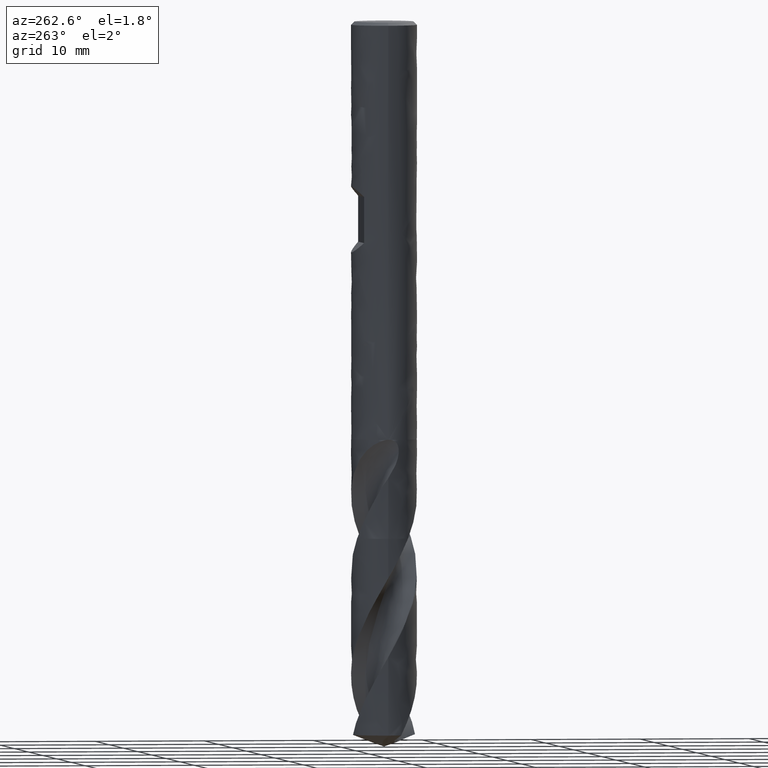
[diagram: clean part render]
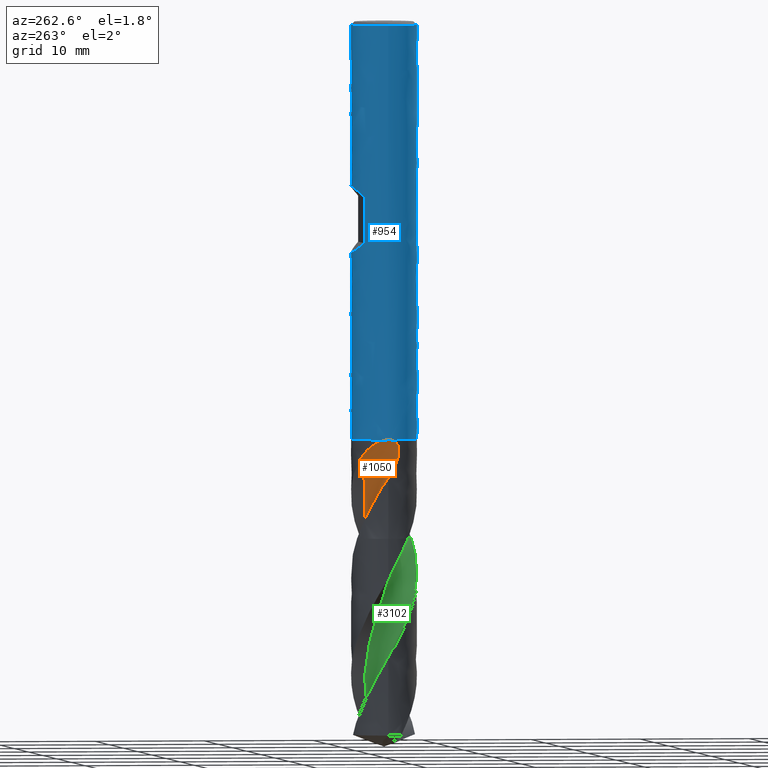
[diagram: same view with three faces highlighted in distinct colors, each labeled with its STEP entity id]
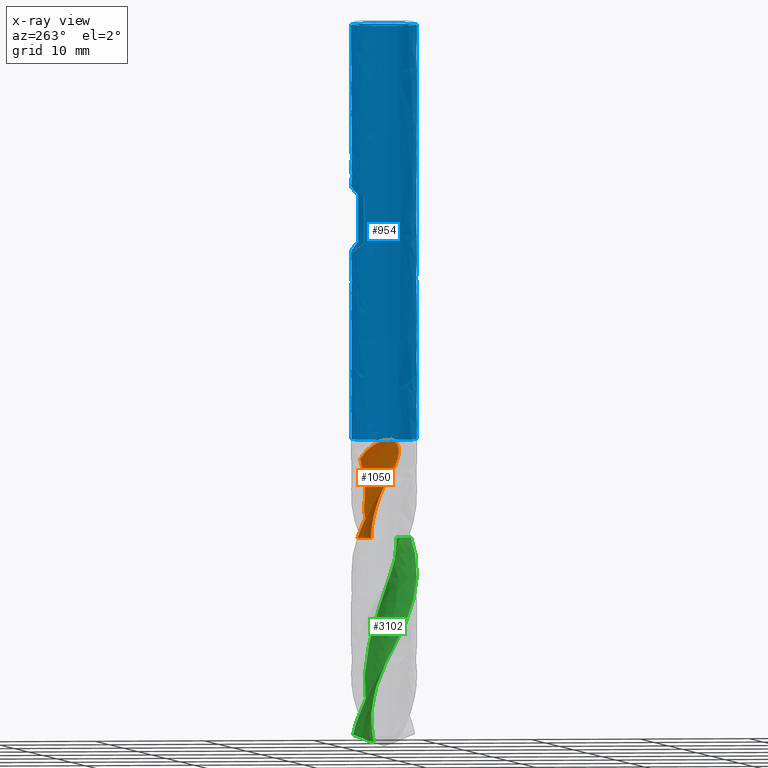
[diagram: x-ray of the same camera — body ghosted, the three highlighted faces saturated]
A machine part, auxiliary view with three faces highlighted in distinct colors.
The next image is the same camera in x-ray (body ghosted, the three faces saturated) — at least one of them is partly hidden behind the body in this view.
Their STEP definitions:

[orange] entity #1050 — the highlighted face is a freeform B-spline surface patch.
#958 = EDGE_CURVE('', #959, #961, #963, .T.);
#959 = VERTEX_POINT('', #960);
#960 = CARTESIAN_POINT('', (-3., 2.50937340237209E-15, -37.9811776606808));
#961 = VERTEX_POINT('', #962);
#962 = CARTESIAN_POINT('', (-2.99408928495557, 0.188226867673722, -38.));
#963 = B_SPLINE_CURVE_WITH_KNOTS('', 3, (#964, #965, #966, #967, #968, #969, #970), .UNSPECIFIED., .F., .U., (4, 3, 4), (0., 0.132014720814239, 0.189340470183882), .UNSPECIFIED.);
#964 = CARTESIAN_POINT('', (-3., 2.87019588537527E-15, -37.9811776606808));
#965 = CARTESIAN_POINT('', (-3., 0.0439690861731626, -37.9829528496078));
#966 = CARTESIAN_POINT('', (-2.99902999640528, 0.0879006678625735, -37.9866858548961));
#967 = CARTESIAN_POINT('', (-2.99711512476449, 0.131532995510276, -37.9920696347274));
#968 = CARTESIAN_POINT('', (-2.99628361558826, 0.150479790714017, -37.994407474109));
#969 = CARTESIAN_POINT('', (-2.99527390975267, 0.169383264443628, -37.9970583626373));
#970 = CARTESIAN_POINT('', (-2.99408928495557, 0.188226867673723, -38.));
#980 = EDGE_CURVE('', #981, #959, #983, .T.);
#981 = VERTEX_POINT('', #982);
#982 = CARTESIAN_POINT('', (-2.99946924100107, -0.0564293566190932, -37.98));
#983 = B_SPLINE_CURVE_WITH_KNOTS('', 3, (#984, #985, #986, #987), .UNSPECIFIED., .F., .U., (4, 4), (0., 0.0564441394050469), .UNSPECIFIED.);
#984 = CARTESIAN_POINT('', (-2.99946924100193, -0.0564293565742411, -37.98));
#985 = CARTESIAN_POINT('', (-2.99982314157084, -0.0376179800984802, -37.9800173155262));
#986 = CARTESIAN_POINT('', (-3., -0.0187993976290126, -37.9804186619067));
#987 = CARTESIAN_POINT('', (-3., 2.87019588537527E-15, -37.9811776606808));
#989 = EDGE_CURVE('', #990, #981, #992, .T.);
#990 = VERTEX_POINT('', #991);
#991 = CARTESIAN_POINT('', (-2.99942034386524, -0.0589711862464074, -37.98));
#992 = LINE('', #993, #994);
#993 = CARTESIAN_POINT('', (-2.99942034386524, -0.0589711862464074, -37.98));
#994 = VECTOR('', #995, 0.00254229990052015);
#995 = DIRECTION('', (-4.88971358305612E-5, 0.00254182962731422, 0.));
#997 = EDGE_CURVE('', #990, #998, #1000, .T.);
#998 = VERTEX_POINT('', #999);
#999 = CARTESIAN_POINT('', (-2.98685957380659, -0.280481525879938, -38.));
#1000 = B_SPLINE_CURVE_WITH_KNOTS('', 3, (#1001, #1002, #1003, #1004, #1005, #1006, #1007), .UNSPECIFIED., .F., .U., (4, 3, 4), (0., 0.132045433370553, 0.223039637492634), .UNSPECIFIED.);
#1001 = CARTESIAN_POINT('', (-2.99942034386524, -0.058971186246723, -37.98));
#1002 = CARTESIAN_POINT('', (-2.99855513580527, -0.102977807478284, -37.9800405506151));
#1003 = CARTESIAN_POINT('', (-2.99671393311246, -0.147042906437953, -37.9821917591609));
#1004 = CARTESIAN_POINT('', (-2.99393108586827, -0.190726644891732, -37.9868090849534));
#1005 = CARTESIAN_POINT('', (-2.99201339008951, -0.220829670132476, -37.9899909434619));
#1006 = CARTESIAN_POINT('', (-2.9896457536425, -0.250811379544435, -37.9943507940678));
#1007 = CARTESIAN_POINT('', (-2.98685957380658, -0.280481525879937, -38.));
#1050 = ADVANCED_FACE('', (#1051), #1358, .T.);
#1051 = FACE_OUTER_BOUND('', #1052, .T.);
#1052 = EDGE_LOOP('', (#1053, #1118, #1160, #1171, #1195, #1286, #1287, #1288, #1289, #1290, #1338));
#1053 = ORIENTED_EDGE('', *, *, #1054, .T.);
#1054 = EDGE_CURVE('', #1055, #1057, #1059, .T.);
#1055 = VERTEX_POINT('', #1056);
#1056 = CARTESIAN_POINT('', (1.21383007507821, 1.32358241608792, -47.));
#1057 = VERTEX_POINT('', #1058);
#1058 = CARTESIAN_POINT('', (-1.40658153903245, 2.64981666800802, -47.));
#1059 = B_SPLINE_CURVE_WITH_KNOTS('', 3, (#1060, #1061, #1062, #1063, #1064, #1065, #1066, #1067, #1068, #1069, #1070, #1071, #1072, #1073, #1074, #1075, #1076, #1077, #1078, #1079, #1080, #1081, #1082, #1083, #1084, #1085, #1086, #1087, #1088, #1089, #1090, #1091, #1092, #1093, #1094, #1095, #1096, #1097, #1098, #1099, #1100, #1101, #1102, #1103, #1104, #1105, #1106, #1107, #1108, #1109, #1110, #1111, #1112, #1113, #1114, #1115, #1116, #1117), .UNSPECIFIED., .F., .U., (4, 3, 3, 3, 3, 3, 3, 3, 3, 3, 3, 3, 3, 3, 3, 3, 3, 3, 3, 4), (0., 0.198384932101445, 0.396452544409531, 0.594211753382103, 0.791669291329075, 0.988829890577812, 1.18569641110773, 1.38226991902396, 1.57854972037163, 1.70943970370936, 1.74834433318963, 1.94669456411553, 2.14472854829068, 2.34245495597353, 2.53988029614019, 2.73700909410099, 2.93384401353807, 3.13038592999498, 3.3266339600419, 3.4333321975433), .UNSPECIFIED.);
#1060 = CARTESIAN_POINT('', (1.21383007507822, 1.32358241608792, -47.));
#1061 = CARTESIAN_POINT('', (1.15534944995377, 1.29271220453773, -47.));
#1062 = CARTESIAN_POINT('', (1.09507376834295, 1.26502792601887, -47.));
#1063 = CARTESIAN_POINT('', (1.03355098874822, 1.24078125476203, -47.));
#1064 = CARTESIAN_POINT('', (0.972126615799097, 1.21657336643407, -47.));
#1065 = CARTESIAN_POINT('', (0.909273457812871, 1.19571888366935, -47.));
#1066 = CARTESIAN_POINT('', (0.845561082502684, 1.17840678726754, -47.));
#1067 = CARTESIAN_POINT('', (0.781947911241206, 1.1611216468542, -47.));
#1068 = CARTESIAN_POINT('', (0.71728650325303, 1.14731574722269, -47.));
#1069 = CARTESIAN_POINT('', (0.65216099319872, 1.13711380734751, -47.));
#1070 = CARTESIAN_POINT('', (0.587134828603531, 1.12692742998232, -47.));
#1071 = CARTESIAN_POINT('', (0.521450620933686, 1.12030338921183, -47.));
#1072 = CARTESIAN_POINT('', (0.455699939691455, 1.11730134291485, -47.));
#1073 = CARTESIAN_POINT('', (0.390048135007187, 1.1143038111263, -47.));
#1074 = CARTESIAN_POINT('', (0.324133410931934, 1.11490837733413, -47.));
#1075 = CARTESIAN_POINT('', (0.258547632944896, 1.11910961298088, -47.));
#1076 = CARTESIAN_POINT('', (0.193059680698075, 1.12330458219306, -47.));
#1077 = CARTESIAN_POINT('', (0.127704120229022, 1.13109799516583, -47.));
#1078 = CARTESIAN_POINT('', (0.0630660507212188, 1.14242008094882, -47.));
#1079 = CARTESIAN_POINT('', (-0.00147581263818018, 1.15372531514151, -47.));
#1080 = CARTESIAN_POINT('', (-0.0654944987188666, 1.16858235596678, -47.));
#1081 = CARTESIAN_POINT('', (-0.128418577780606, 1.18685858972231, -47.));
#1082 = CARTESIAN_POINT('', (-0.191248640026259, 1.20510751639074, -47.));
#1083 = CARTESIAN_POINT('', (-0.253173892893517, 1.22681957023847, -47.));
#1084 = CARTESIAN_POINT('', (-0.313643239431595, 1.25180152723947, -47.));
#1085 = CARTESIAN_POINT('', (-0.353967468957345, 1.26846084680855, -47.));
#1086 = CARTESIAN_POINT('', (-0.393711780706873, 1.28659932989788, -47.));
#1087 = CARTESIAN_POINT('', (-0.432718691744312, 1.30614510454784, -47.));
#1088 = CARTESIAN_POINT('', (-0.444312775434935, 1.31195472497311, -47.));
#1089 = CARTESIAN_POINT('', (-0.455844740877854, 1.31789000335302, -47.));
#1090 = CARTESIAN_POINT('', (-0.467310547491013, 1.32394886007855, -47.));
#1091 = CARTESIAN_POINT('', (-0.525767482304508, 1.35483915891214, -47.));
#1092 = CARTESIAN_POINT('', (-0.582605695585864, 1.38900707151014, -47.));
#1093 = CARTESIAN_POINT('', (-0.637308658754547, 1.42614209016347, -47.));
#1094 = CARTESIAN_POINT('', (-0.691924404306806, 1.46321790127803, -47.));
#1095 = CARTESIAN_POINT('', (-0.744576770340692, 1.50336337764564, -47.));
#1096 = CARTESIAN_POINT('', (-0.794788789120177, 1.54621484905701, -47.));
#1097 = CARTESIAN_POINT('', (-0.844922821100215, 1.58899976570345, -47.));
#1098 = CARTESIAN_POINT('', (-0.89277513402211, 1.63461114429062, -47.));
#1099 = CARTESIAN_POINT('', (-0.937913585367525, 1.6826370796293, -47.));
#1100 = CARTESIAN_POINT('', (-0.982983306786622, 1.73058988842291, -47.));
#1101 = CARTESIAN_POINT('', (-1.02548280975264, 1.7810939034887, -47.));
#1102 = CARTESIAN_POINT('', (-1.06502945693745, 1.83369442018228, -47.));
#1103 = CARTESIAN_POINT('', (-1.1045167031863, 1.88621592840998, -47.));
#1104 = CARTESIAN_POINT('', (-1.14117822177724, 1.94098489244228, -47.));
#1105 = CARTESIAN_POINT('', (-1.17468492533264, 1.99750968576062, -47.));
#1106 = CARTESIAN_POINT('', (-1.20814167727936, 2.05395021222913, -47.));
#1107 = CARTESIAN_POINT('', (-1.2385529235809, 2.11230981897817, -47.));
#1108 = CARTESIAN_POINT('', (-1.26564649311648, 2.17206620582248, -47.));
#1109 = CARTESIAN_POINT('', (-1.29269973191887, 2.23173364097327, -47.));
#1110 = CARTESIAN_POINT('', (-1.31652571826219, 2.29297129110355, -47.));
#1111 = CARTESIAN_POINT('', (-1.33691184998262, 2.35523272523937, -47.));
#1112 = CARTESIAN_POINT('', (-1.35726749860219, 2.41740106071366, -47.));
#1113 = CARTESIAN_POINT('', (-1.37425401151974, 2.48077460718548, -47.));
#1114 = CARTESIAN_POINT('', (-1.38772026796514, 2.54478956093624, -47.));
#1115 = CARTESIAN_POINT('', (-1.39504174695335, 2.57959389878008, -47.));
#1116 = CARTESIAN_POINT('', (-1.40133542653307, 2.61463962590714, -47.));
#1117 = CARTESIAN_POINT('', (-1.40658153903245, 2.64981666800802, -47.));
#1118 = ORIENTED_EDGE('', *, *, #1119, .F.);
#1119 = EDGE_CURVE('', #1120, #1057, #1122, .T.);
#1120 = VERTEX_POINT('', #1121);
#1121 = CARTESIAN_POINT('', (-2.65824873947468, 1.39058032456995, -43.8326240906969));
#1122 = B_SPLINE_CURVE_WITH_KNOTS('', 3, (#1123, #1124, #1125, #1126, #1127, #1128, #1129, #1130, #1131, #1132, #1133, #1134, #1135, #1136, #1137, #1138, #1139, #1140, #1141, #1142, #1143, #1144, #1145, #1146, #1147, #1148, #1149, #1150, #1151, #1152, #1153, #1154, #1155, #1156, #1157, #1158, #1159), .UNSPECIFIED., .F., .U., (4, 3, 3, 3, 3, 3, 3, 3, 3, 3, 3, 3, 4), (0., 0.197101345439371, 0.394187785994559, 0.837653330037506, 1.28106754910433, 1.47812350726689, 1.77369450994474, 2.06927509771292, 2.26631426520074, 2.70955318718736, 3.15273672522401, 3.59583824486793, 3.64430300471414), .UNSPECIFIED.);
#1123 = CARTESIAN_POINT('', (-2.65824873947468, 1.39058032456995, -43.8326240906969));
#1124 = CARTESIAN_POINT('', (-2.64372941372748, 1.41833562836907, -43.8903768501228));
#1125 = CARTESIAN_POINT('', (-2.62872710962598, 1.44595566855234, -43.9480754460095));
#1126 = CARTESIAN_POINT('', (-2.61324247681249, 1.4734190705237, -44.0057168948916));
#1127 = CARTESIAN_POINT('', (-2.59775901495326, 1.50088039570139, -44.0633539849039));
#1128 = CARTESIAN_POINT('', (-2.58179154776276, 1.52818813714252, -44.1209365340917));
#1129 = CARTESIAN_POINT('', (-2.56534321821207, 1.55531802946323, -44.1784632019458));
#1130 = CARTESIAN_POINT('', (-2.52833271971075, 1.61636318520271, -44.3079043496223));
#1131 = CARTESIAN_POINT('', (-2.4888780853714, 1.67651946651111, -44.43709326542));
#1132 = CARTESIAN_POINT('', (-2.44703469073676, 1.7355175661257, -44.5660104997903));
#1133 = CARTESIAN_POINT('', (-2.40519613889377, 1.79450883752985, -44.6949128137817));
#1134 = CARTESIAN_POINT('', (-2.36095341946284, 1.85236278710504, -44.8235836642281));
#1135 = CARTESIAN_POINT('', (-2.31441946923549, 1.90878561405511, -44.9520254687534));
#1136 = CARTESIAN_POINT('', (-2.29373950058578, 1.93386025927123, -45.0091057827589));
#1137 = CARTESIAN_POINT('', (-2.27260527964494, 1.95865531400464, -45.0661468789812));
#1138 = CARTESIAN_POINT('', (-2.25102837353581, 1.98314680786288, -45.1231483266329));
#1139 = CARTESIAN_POINT('', (-2.21866443065975, 2.01988244105185, -45.2086467565895));
#1140 = CARTESIAN_POINT('', (-2.18529632138945, 2.05594295897343, -45.2940637826045));
#1141 = CARTESIAN_POINT('', (-2.15099439857322, 2.09122526221035, -45.3794186315514));
#1142 = CARTESIAN_POINT('', (-2.11669136337782, 2.12650870961925, -45.4647762484759));
#1143 = CARTESIAN_POINT('', (-2.0814487040836, 2.16101852468268, -45.5500846553268));
#1144 = CARTESIAN_POINT('', (-2.04538901083439, 2.19462611721403, -45.6353945076226));
#1145 = CARTESIAN_POINT('', (-2.02135099131714, 2.21702952368821, -45.6922635408761));
#1146 = CARTESIAN_POINT('', (-1.99695492678004, 2.23902846436833, -45.7491431257901));
#1147 = CARTESIAN_POINT('', (-1.97222053551059, 2.26060747572646, -45.8060323348238));
#1148 = CARTESIAN_POINT('', (-1.91658060837303, 2.3091493867275, -45.9340044126916));
#1149 = CARTESIAN_POINT('', (-1.8592080920907, 2.35558586383331, -46.0620506758264));
#1150 = CARTESIAN_POINT('', (-1.8002096304515, 2.39984276285545, -46.1900720792809));
#1151 = CARTESIAN_POINT('', (-1.74121854083602, 2.44409413185358, -46.318077486101));
#1152 = CARTESIAN_POINT('', (-1.68056417352335, 2.48619120140138, -46.4460900127957));
#1153 = CARTESIAN_POINT('', (-1.61844652449991, 2.52599106240188, -46.5740778451531));
#1154 = CARTESIAN_POINT('', (-1.55634037136766, 2.56578355778441, -46.70204199126));
#1155 = CARTESIAN_POINT('', (-1.49275668542628, 2.60328922585032, -46.8300290108031));
#1156 = CARTESIAN_POINT('', (-1.42790677401898, 2.63838629558121, -46.958006056875));
#1157 = CARTESIAN_POINT('', (-1.42081373722477, 2.64222507965304, -46.9720036996921));
#1158 = CARTESIAN_POINT('', (-1.41370500703695, 2.64603537298109, -46.986002162665));
#1159 = CARTESIAN_POINT('', (-1.40658153903245, 2.64981666800802, -47.));
#1160 = ORIENTED_EDGE('', *, *, #1161, .T.);
#1161 = EDGE_CURVE('', #1120, #1162, #1164, .T.);
#1162 = VERTEX_POINT('', #1163);
#1163 = CARTESIAN_POINT('', (-2.9291945217409, 0.647934760452864, -42.4446164819957));
#1164 = (
   BOUNDED_CURVE ()
   B_SPLINE_CURVE (3, (#1165, #1166, #1167, #1168, #1169, #1170), .UNSPECIFIED., .F., .U.)
   B_SPLINE_CURVE_WITH_KNOTS ((4, 1, 1, 4), (22.217375909303, 22.5660784313725, 23.1164705882353, 23.6053835180043), .UNSPECIFIED.)
   CURVE ()
   GEOMETRIC_REPRESENTATION_ITEM ()
   RATIONAL_B_SPLINE_CURVE ((1., 1., 1., 1., 1., 1.))
   REPRESENTATION_ITEM ('')
);
#1165 = CARTESIAN_POINT('', (-2.65824873947462, 1.39058032457003, -43.832624090697));
#1166 = CARTESIAN_POINT('', (-2.6807436255867, 1.32734872692769, -43.7163899166738));
#1167 = CARTESIAN_POINT('', (-2.73019872923959, 1.16171918575506, -43.4166916903631));
#1168 = CARTESIAN_POINT('', (-2.77522186769001, 0.903540888125329, -42.9540224874626));
#1169 = CARTESIAN_POINT('', (-2.87209092984141, 0.730465604114448, -42.6075874585854));
#1170 = CARTESIAN_POINT('', (-2.9291945217409, 0.647934760452863, -42.4446164819957));
#1171 = ORIENTED_EDGE('', *, *, #1172, .T.);
#1172 = EDGE_CURVE('', #1162, #1173, #1175, .T.);
#1173 = VERTEX_POINT('', #1174);
#1174 = CARTESIAN_POINT('', (-3., 2.72359002726009E-15, -41.4796006351604));
#1175 = B_SPLINE_CURVE_WITH_KNOTS('', 3, (#1176, #1177, #1178, #1179, #1180, #1181, #1182, #1183, #1184, #1185, #1186, #1187, #1188, #1189, #1190, #1191, #1192, #1193, #1194), .UNSPECIFIED., .F., .U., (4, 3, 3, 3, 3, 3, 4), (0., 0.131289354803777, 0.426448063340147, 0.721339953690397, 0.917947035074307, 1.11446978268667, 1.16521781390386), .UNSPECIFIED.);
#1176 = CARTESIAN_POINT('', (-2.9291945217409, 0.647934760452863, -42.4446164819957));
#1177 = CARTESIAN_POINT('', (-2.93437262752013, 0.624525491484287, -42.4080049555671));
#1178 = CARTESIAN_POINT('', (-2.9393021677224, 0.60090811621597, -42.3714898748393));
#1179 = CARTESIAN_POINT('', (-2.94396614016892, 0.577116422863895, -42.3350561924974));
#1180 = CARTESIAN_POINT('', (-2.95445146920432, 0.523629028595049, -42.253147658151));
#1181 = CARTESIAN_POINT('', (-2.96359172495592, 0.469247116559033, -42.171636328921));
#1182 = CARTESIAN_POINT('', (-2.97124348488095, 0.414381652046145, -42.0903277633005));
#1183 = CARTESIAN_POINT('', (-2.97888832775206, 0.359565784930516, -42.009092699167));
#1184 = CARTESIAN_POINT('', (-2.98504881216746, 0.304253650979334, -41.9280384857639));
#1185 = CARTESIAN_POINT('', (-2.98965803896624, 0.24888714318848, -41.8469480214768));
#1186 = CARTESIAN_POINT('', (-2.99273105201949, 0.211973793383403, -41.7928842780059));
#1187 = CARTESIAN_POINT('', (-2.99511653750183, 0.175032433986062, -41.7387960970907));
#1188 = CARTESIAN_POINT('', (-2.99681504829294, 0.138201180624161, -41.6846158331745));
#1189 = CARTESIAN_POINT('', (-2.99851283051506, 0.101385725871776, -41.6304588096522));
#1190 = CARTESIAN_POINT('', (-2.99952451035377, 0.0646760289683598, -41.5762035619673));
#1191 = CARTESIAN_POINT('', (-2.99986741308199, 0.0282046792056839, -41.5217887989511));
#1192 = CARTESIAN_POINT('', (-2.99995596078737, 0.018786689589846, -41.5077372851911));
#1193 = CARTESIAN_POINT('', (-3., 0.00938438441805856, -41.4936748931209));
#1194 = CARTESIAN_POINT('', (-3., 3.10419919991112E-15, -41.4796006351604));
#1195 = ORIENTED_EDGE('', *, *, #1196, .T.);
#1196 = EDGE_CURVE('', #1173, #998, #1197, .T.);
#1197 = B_SPLINE_CURVE_WITH_KNOTS('', 3, (#1198, #1199, #1200, #1201, #1202, #1203, #1204, #1205, #1206, #1207, #1208, #1209, #1210, #1211, #1212, #1213, #1214, #1215, #1216, #1217, #1218, #1219, #1220, #1221, #1222, #1223, #1224, #1225, #1226, #1227, #1228, #1229, #1230, #1231, #1232, #1233, #1234, #1235, #1236, #1237, #1238, #1239, #1240, #1241, #1242, #1243, #1244, #1245, #1246, #1247, #1248, #1249, #1250, #1251, #1252, #1253, #1254, #1255, #1256, #1257, #1258, #1259, #1260, #1261, #1262, #1263, #1264, #1265, #1266, #1267, #1268, #1269, #1270, #1271, #1272, #1273, #1274, #1275, #1276, #1277, #1278, #1279, #1280, #1281, #1282, #1283, #1284, #1285), .UNSPECIFIED., .F., .U., (4, 3, 3, 3, 3, 3, 3, 3, 3, 3, 3, 3, 3, 3, 3, 3, 3, 3, 3, 3, 3, 3, 3, 3, 3, 3, 3, 3, 3, 4), (0., 0.196878715671723, 0.393655659400233, 0.590323849429259, 0.786887248246321, 0.983351794396501, 1.17972334074308, 1.37601783552389, 1.5722563064554, 1.76846176131112, 1.96467274576665, 2.16094244263597, 2.35734097844125, 2.55397304306872, 2.75098922621858, 2.88254593553914, 2.94099697569845, 2.97995901992927, 3.11203496571948, 3.24449777621902, 3.33269985432784, 3.42101508482769, 3.50942179294311, 3.59787983567314, 3.68633330333576, 3.77472023838806, 3.86298615584293, 3.95109479185583, 4.03903146212518, 4.06299835168849), .UNSPECIFIED.);
#1198 = CARTESIAN_POINT('', (-3., 3.10419919991112E-15, -41.4796006351604));
#1199 = CARTESIAN_POINT('', (-3., -0.0364070389980104, -41.424999072009));
#1200 = CARTESIAN_POINT('', (-2.99933596768666, -0.0725471022433068, -41.3702140086313));
#1201 = CARTESIAN_POINT('', (-2.99804485465893, -0.108291502220864, -41.3151915215505));
#1202 = CARTESIAN_POINT('', (-2.99675440904252, -0.14401742494946, -41.2601974770842));
#1203 = CARTESIAN_POINT('', (-2.99483725387525, -0.179354280350627, -41.2049591578449));
#1204 = CARTESIAN_POINT('', (-2.99234564959505, -0.214167022086988, -41.1494234337354));
#1205 = CARTESIAN_POINT('', (-2.98985542236227, -0.248960523690937, -41.0939184028328));
#1206 = CARTESIAN_POINT('', (-2.98679104067552, -0.283235945147883, -41.0381071911206));
#1207 = CARTESIAN_POINT('', (-2.98321970970811, -0.316859848527798, -40.9819442481986));
#1208 = CARTESIAN_POINT('', (-2.97965028166206, -0.350465835997746, -40.9258112307204));
#1209 = CARTESIAN_POINT('', (-2.97557378746364, -0.383427527442563, -40.8693163719051));
#1210 = CARTESIAN_POINT('', (-2.97107179829225, -0.415610838877493, -40.8124218605688));
#1211 = CARTESIAN_POINT('', (-2.9665720731926, -0.447777965172241, -40.7555559617525));
#1212 = CARTESIAN_POINT('', (-2.96164617795422, -0.479175311021586, -40.6982784623704));
#1213 = CARTESIAN_POINT('', (-2.95639047181293, -0.509662023476228, -40.6405581028351));
#1214 = CARTESIAN_POINT('', (-2.9511372535487, -0.540134304531789, -40.5828650662046));
#1215 = CARTESIAN_POINT('', (-2.94555325358065, -0.569704498140233, -40.5247138536761));
#1216 = CARTESIAN_POINT('', (-2.93974917343217, -0.598226376303528, -40.4660840164754));
#1217 = CARTESIAN_POINT('', (-2.93394737066793, -0.62673706315417, -40.4074771842408));
#1218 = CARTESIAN_POINT('', (-2.92792374945272, -0.654209906213739, -40.3483731421622));
#1219 = CARTESIAN_POINT('', (-2.92180319189939, -0.680489608889446, -40.2887644434086));
#1220 = CARTESIAN_POINT('', (-2.91568438119686, -0.706761811150513, -40.2291727574029));
#1221 = CARTESIAN_POINT('', (-2.90946605326944, -0.731852995394745, -40.169053036819));
#1222 = CARTESIAN_POINT('', (-2.90328888084298, -0.755588296874362, -40.1084121636266));
#1223 = CARTESIAN_POINT('', (-2.89711274769283, -0.779319605016135, -40.0477814929375));
#1224 = CARTESIAN_POINT('', (-2.89097487131439, -0.801706946824679, -39.9865988181989));
#1225 = CARTESIAN_POINT('', (-2.88503239513427, -0.822549742584478, -39.9248925569543));
#1226 = CARTESIAN_POINT('', (-2.87908975147912, -0.843393125750572, -39.8631845566607));
#1227 = CARTESIAN_POINT('', (-2.87333861681394, -0.862706233411544, -39.8009130141522));
#1228 = CARTESIAN_POINT('', (-2.86795337363614, -0.880251922263776, -39.7381373270251));
#1229 = CARTESIAN_POINT('', (-2.86256651902651, -0.89780286133045, -39.6753428554648));
#1230 = CARTESIAN_POINT('', (-2.85754120381309, -0.913601287102519, -39.6119904059463));
#1231 = CARTESIAN_POINT('', (-2.85307188601547, -0.927351504677782, -39.5481847946076));
#1232 = CARTESIAN_POINT('', (-2.8485996343867, -0.941110748421779, -39.4843372988253));
#1233 = CARTESIAN_POINT('', (-2.844679337855, -0.952835871819928, -39.4199623524809));
#1234 = CARTESIAN_POINT('', (-2.8415249760543, -0.962151656683917, -39.3552391982413));
#1235 = CARTESIAN_POINT('', (-2.83836686354134, -0.971478518536123, -39.2904390845585));
#1236 = CARTESIAN_POINT('', (-2.8359721217357, -0.978407062782356, -39.2251852374679));
#1237 = CARTESIAN_POINT('', (-2.83457289974781, -0.982444133788412, -39.1597806275731));
#1238 = CARTESIAN_POINT('', (-2.83317094439554, -0.986489091167185, -39.09424825051));
#1239 = CARTESIAN_POINT('', (-2.8327676347807, -0.987640602263506, -39.0284098294871));
#1240 = CARTESIAN_POINT('', (-2.83360053448984, -0.985245152710169, -38.9627867565473));
#1241 = CARTESIAN_POINT('', (-2.83415669968996, -0.98364560156903, -38.9189672317071));
#1242 = CARTESIAN_POINT('', (-2.8352650662531, -0.98045910441811, -38.8751701076467));
#1243 = CARTESIAN_POINT('', (-2.83698717628158, -0.975450542884613, -38.831638885642));
#1244 = CARTESIAN_POINT('', (-2.83775231492751, -0.973225223987182, -38.8122978332645));
#1245 = CARTESIAN_POINT('', (-2.8386388248538, -0.97063869090873, -38.7929988155351));
#1246 = CARTESIAN_POINT('', (-2.83965096565849, -0.967668534796318, -38.7737694751389));
#1247 = CARTESIAN_POINT('', (-2.84032563414502, -0.965688700844539, -38.7609516637021));
#1248 = CARTESIAN_POINT('', (-2.84105626475657, -0.963537930151654, -38.7481617890598));
#1249 = CARTESIAN_POINT('', (-2.84184385407832, -0.961209399161951, -38.7354091871071));
#1250 = CARTESIAN_POINT('', (-2.84451367304233, -0.953316000885802, -38.6921796287657));
#1251 = CARTESIAN_POINT('', (-2.84784712712646, -0.943362925066247, -38.6492929311255));
#1252 = CARTESIAN_POINT('', (-2.85185628857373, -0.931083084006199, -38.6072053971983));
#1253 = CARTESIAN_POINT('', (-2.85587719328786, -0.918767273965473, -38.5649945843388));
#1254 = CARTESIAN_POINT('', (-2.86059415231649, -0.904062841645028, -38.5234434924743));
#1255 = CARTESIAN_POINT('', (-2.8659516686702, -0.886747445920478, -38.4831809333982));
#1256 = CARTESIAN_POINT('', (-2.86951904032808, -0.875217765397906, -38.4563715869326));
#1257 = CARTESIAN_POINT('', (-2.87337739392872, -0.862504061023392, -38.4300716632582));
#1258 = CARTESIAN_POINT('', (-2.8774852043771, -0.848574627590791, -38.4045080659179));
#1259 = CARTESIAN_POINT('', (-2.88159828463981, -0.834627324412573, -38.3789116736341));
#1260 = CARTESIAN_POINT('', (-2.88597154761779, -0.819426223539878, -38.3539931841272));
#1261 = CARTESIAN_POINT('', (-2.89053838290072, -0.802986834871951, -38.3300033840267));
#1262 = CARTESIAN_POINT('', (-2.89510994854782, -0.786530418154976, -38.3059887351012));
#1263 = CARTESIAN_POINT('', (-2.89988809093588, -0.768786186347306, -38.2828396595711));
#1264 = CARTESIAN_POINT('', (-2.90478049682582, -0.749833491690226, -38.2608106796472));
#1265 = CARTESIAN_POINT('', (-2.90967574356094, -0.730869791880972, -38.2387689082822));
#1266 = CARTESIAN_POINT('', (-2.91469998995235, -0.710637198605045, -38.2177823464247));
#1267 = CARTESIAN_POINT('', (-2.91974042642163, -0.689286473332558, -38.1980804285867));
#1268 = CARTESIAN_POINT('', (-2.92478060219854, -0.667936852323792, -38.1783795297357));
#1269 = CARTESIAN_POINT('', (-2.92985258392021, -0.645400150751728, -38.1599002308852));
#1270 = CARTESIAN_POINT('', (-2.93483426023281, -0.621890557062665, -38.1428175785646));
#1271 = CARTESIAN_POINT('', (-2.93981218944609, -0.598398646734999, -38.1257477754118));
#1272 = CARTESIAN_POINT('', (-2.94471533524822, -0.573860116206986, -38.110017115471));
#1273 = CARTESIAN_POINT('', (-2.94942630058098, -0.548529395238947, -38.0957276371515));
#1274 = CARTESIAN_POINT('', (-2.95413081575562, -0.523233356579905, -38.0814577236956));
#1275 = CARTESIAN_POINT('', (-2.95865762765068, -0.497070836417372, -38.0685801189524));
#1276 = CARTESIAN_POINT('', (-2.96290595978265, -0.470306573932874, -38.0571224406246));
#1277 = CARTESIAN_POINT('', (-2.96714672179215, -0.443590002810099, -38.0456851787863));
#1278 = CARTESIAN_POINT('', (-2.97112162855065, -0.41620068858351, -38.035629380622));
#1279 = CARTESIAN_POINT('', (-2.97475292107068, -0.388387768321139, -38.0269216039568));
#1280 = CARTESIAN_POINT('', (-2.97837712622734, -0.360629131835357, -38.0182308226663));
#1281 = CARTESIAN_POINT('', (-2.98166796778406, -0.332382038804766, -38.0108601293642));
#1282 = CARTESIAN_POINT('', (-2.98457140486162, -0.303864327100293, -38.0047350486069));
#1283 = CARTESIAN_POINT('', (-2.98536272838546, -0.296091905823412, -38.0030656752541));
#1284 = CARTESIAN_POINT('', (-2.98612572416116, -0.288296321639873, -38.001487939765));
#1285 = CARTESIAN_POINT('', (-2.98685957380658, -0.280481525879955, -38.));
#1286 = ORIENTED_EDGE('', *, *, #997, .F.);
#1287 = ORIENTED_EDGE('', *, *, #989, .T.);
#1288 = ORIENTED_EDGE('', *, *, #980, .T.);
#1289 = ORIENTED_EDGE('', *, *, #958, .T.);
#1290 = ORIENTED_EDGE('', *, *, #1291, .F.);
#1291 = EDGE_CURVE('', #1292, #961, #1294, .T.);
#1292 = VERTEX_POINT('', #1293);
#1293 = CARTESIAN_POINT('', (-1.78603378112266, 2.41041144468921, -39.7531575791044));
#1294 = B_SPLINE_CURVE_WITH_KNOTS('', 3, (#1295, #1296, #1297, #1298, #1299, #1300, #1301, #1302, #1303, #1304, #1305, #1306, #1307, #1308, #1309, #1310, #1311, #1312, #1313, #1314, #1315, #1316, #1317, #1318, #1319, #1320, #1321, #1322, #1323, #1324, #1325, #1326, #1327, #1328, #1329, #1330, #1331, #1332, #1333, #1334, #1335, #1336, #1337), .UNSPECIFIED., .F., .U., (4, 3, 3, 3, 3, 3, 3, 3, 3, 3, 3, 3, 3, 3, 4), (0., 0.298887318343757, 0.597968485407002, 0.89719470226419, 1.19651288117712, 1.49585484490648, 1.79516392097546, 1.99379368142314, 2.19236221219635, 2.39084108618394, 2.5891920989357, 2.78736276315551, 2.98527985183926, 3.11683923397545, 3.20181331991245), .UNSPECIFIED.);
#1295 = CARTESIAN_POINT('', (-1.78603378112266, 2.41041144468921, -39.7531575791044));
#1296 = CARTESIAN_POINT('', (-1.8377029700737, 2.3721263141099, -39.6770622279004));
#1297 = CARTESIAN_POINT('', (-1.88950010787631, 2.33117024798474, -39.6023323409855));
#1298 = CARTESIAN_POINT('', (-1.94101936934514, 2.28745356408103, -39.5291163862259));
#1299 = CARTESIAN_POINT('', (-1.99257204455304, 2.24370852693957, -39.4558529459485));
#1300 = CARTESIAN_POINT('', (-2.04389573873354, 2.19715680527442, -39.3840285275281));
#1301 = CARTESIAN_POINT('', (-2.09455822888152, 2.14774901369427, -39.313807302104));
#1302 = CARTESIAN_POINT('', (-2.14524528956275, 2.0983172600905, -39.2435520204591));
#1303 = CARTESIAN_POINT('', (-2.19532757458001, 2.04597065198727, -39.1748217053424));
#1304 = CARTESIAN_POINT('', (-2.244355425882, 1.99069553732208, -39.1078186272093));
#1305 = CARTESIAN_POINT('', (-2.29339834505486, 1.93540343479656, -39.0407949568271));
#1306 = CARTESIAN_POINT('', (-2.34144928695128, 1.87710880229981, -38.9754151537934));
#1307 = CARTESIAN_POINT('', (-2.38802947238617, 1.81585110595969, -38.9119141468868));
#1308 = CARTESIAN_POINT('', (-2.43461335923728, 1.7545885418796, -38.8484080939794));
#1309 = CARTESIAN_POINT('', (-2.47979424274497, 1.69027260329416, -38.78668686958));
#1310 = CARTESIAN_POINT('', (-2.52307710130721, 1.62298550235644, -38.7270612104241));
#1311 = CARTESIAN_POINT('', (-2.56635520453233, 1.55570579401847, -38.6674421021319));
#1312 = CARTESIAN_POINT('', (-2.60780930652242, 1.48534021987018, -38.6098148766325));
#1313 = CARTESIAN_POINT('', (-2.6469204973833, 1.41202403681105, -38.5545967319929));
#1314 = CARTESIAN_POINT('', (-2.6728757626681, 1.36336939502993, -38.5179524478095));
#1315 = CARTESIAN_POINT('', (-2.69782742035729, 1.31336391405525, -38.4823308060762));
#1316 = CARTESIAN_POINT('', (-2.72161605926446, 1.26206419248538, -38.447889656967));
#1317 = CARTESIAN_POINT('', (-2.74539736507808, 1.21078028458434, -38.4134591246975));
#1318 = CARTESIAN_POINT('', (-2.76804040102332, 1.15815063699735, -38.380172894802));
#1319 = CARTESIAN_POINT('', (-2.78937831957509, 1.10425023897866, -38.3482277606896));
#1320 = CARTESIAN_POINT('', (-2.81070660372417, 1.05037417782952, -38.3162970503029));
#1321 = CARTESIAN_POINT('', (-2.83075587095623, 0.99516467357736, -38.285667876676));
#1322 = CARTESIAN_POINT('', (-2.84935091412389, 0.938722199684969, -38.2565892342389));
#1323 = CARTESIAN_POINT('', (-2.86793397825744, 0.882316086359927, -38.227529324431));
#1324 = CARTESIAN_POINT('', (-2.88509024889458, 0.824599237178142, -38.1999763400385));
#1325 = CARTESIAN_POINT('', (-2.90063590784666, 0.76570969049021, -38.1742506324738));
#1326 = CARTESIAN_POINT('', (-2.91616743207498, 0.706873688491285, -38.1485483157328));
#1327 = CARTESIAN_POINT('', (-2.93011691550009, 0.646766098613726, -38.1246248534159));
#1328 = CARTESIAN_POINT('', (-2.94229356541698, 0.585583960594757, -38.1028995767513));
#1329 = CARTESIAN_POINT('', (-2.95445463431666, 0.524480110113992, -38.081202099351));
#1330 = CARTESIAN_POINT('', (-2.96487193116129, 0.462171832219821, -38.0616489945091));
#1331 = CARTESIAN_POINT('', (-2.97335420819837, 0.398954574593464, -38.0447972296056));
#1332 = CARTESIAN_POINT('', (-2.9789925446024, 0.356932819883051, -38.033595529978));
#1333 = CARTESIAN_POINT('', (-2.98378451957899, 0.314449496523945, -38.0235731827244));
#1334 = CARTESIAN_POINT('', (-2.98767742388496, 0.271631387744706, -38.01493885371));
#1335 = CARTESIAN_POINT('', (-2.99019184725538, 0.243975210009693, -38.0093619484086));
#1336 = CARTESIAN_POINT('', (-2.99233331298105, 0.216158782700451, -38.0043603956128));
#1337 = CARTESIAN_POINT('', (-2.99408928495557, 0.188226867673715, -38.));
#1338 = ORIENTED_EDGE('', *, *, #1339, .F.);
#1339 = EDGE_CURVE('', #1055, #1292, #1340, .T.);
#1340 = B_SPLINE_CURVE_WITH_KNOTS('', 3, (#1341, #1342, #1343, #1344, #1345, #1346, #1347, #1348, #1349, #1350, #1351, #1352, #1353, #1354, #1355, #1356, #1357), .UNSPECIFIED., .F., .U., (4, 1, 1, 1, 1, 1, 1, 1, 1, 1, 1, 1, 1, 1, 4), (19.05, 19.2637254901961, 19.8141176470588, 20.3645098039216, 20.9149019607843, 21.4652941176471, 22.0156862745098, 22.5660784313725, 23.1164705882353, 23.666862745098, 24.2172549019608, 24.7676470588235, 25.3180392156863, 25.868431372549, 26.2968424208956), .UNSPECIFIED.);
#1341 = CARTESIAN_POINT('', (1.21383007507821, 1.32358241608792, -47.));
#1342 = CARTESIAN_POINT('', (1.19627669995168, 1.34048559974497, -46.9287581699346));
#1343 = CARTESIAN_POINT('', (1.13227749444923, 1.39969610515517, -46.6740522875817));
#1344 = CARTESIAN_POINT('', (1.01484391903396, 1.49376496434263, -46.2358823529412));
#1345 = CARTESIAN_POINT('', (0.855295864234759, 1.59578787490851, -45.6854901960784));
#1346 = CARTESIAN_POINT('', (0.686256539257478, 1.68315840566113, -45.1350980392157));
#1347 = CARTESIAN_POINT('', (0.504990291457024, 1.74248456684728, -44.5847058823529));
#1348 = CARTESIAN_POINT('', (0.316894251094181, 1.77069070617349, -44.0343137254902));
#1349 = CARTESIAN_POINT('', (0.127039274039907, 1.76554678525315, -43.4839215686275));
#1350 = CARTESIAN_POINT('', (-0.0557160993547281, 1.7341231816323, -42.9335294117647));
#1351 = CARTESIAN_POINT('', (-0.240646259753676, 1.76904342811896, -42.383137254902));
#1352 = CARTESIAN_POINT('', (-0.450382745564297, 1.8490234743331, -41.8327450980392));
#1353 = CARTESIAN_POINT('', (-0.703409637910805, 1.97124831911698, -41.2823529411765));
#1354 = CARTESIAN_POINT('', (-1.01730638828412, 2.1226307376513, -40.7319607843137));
#1355 = CARTESIAN_POINT('', (-1.37815662904775, 2.27569897754587, -40.2222289969564));
#1356 = CARTESIAN_POINT('', (-1.65527555799942, 2.37095226053839, -39.8959612618866));
#1357 = CARTESIAN_POINT('', (-1.78603378112266, 2.41041144468921, -39.7531575791044));
#1358 = (
   BOUNDED_SURFACE ()
   B_SPLINE_SURFACE (3, 2, ((#1359, #1360, #1361, #1362, #1363), (#1364, #1365, #1366, #1367, #1368), (#1369, #1370, #1371, #1372, #1373), (#1374, #1375, #1376, #1377, #1378), (#1379, #1380, #1381, #1382, #1383), (#1384, #1385, #1386, #1387, #1388), (#1389, #1390, #1391, #1392, #1393), (#1394, #1395, #1396, #1397, #1398), (#1399, #1400, #1401, #1402, #1403), (#1404, #1405, #1406, #1407, #1408), (#1409, #1410, #1411, #1412, #1413), (#1414, #1415, #1416, #1417, #1418), (#1419, #1420, #1421, #1422, #1423), (#1424, #1425, #1426, #1427, #1428), (#1429, #1430, #1431, #1432, #1433), (#1434, #1435, #1436, #1437, #1438), (#1439, #1440, #1441, #1442, #1443), (#1444, #1445, #1446, #1447, #1448), (#1449, #1450, #1451, #1452, #1453)), .UNSPECIFIED., .F., .F., .U.)
   B_SPLINE_SURFACE_WITH_KNOTS ((4, 1, 1, 1, 1, 1, 1, 1, 1, 1, 1, 1, 1, 1, 1, 1, 4), (3, 2, 3), (19.049999999442, 19.2637254901961, 19.8141176470588, 20.3645098039216, 20.9149019607843, 21.4652941176471, 22.0156862745098, 22.5660784313725, 23.1164705882353, 23.666862745098, 24.2172549019608, 24.7676470588235, 25.3180392156863, 25.868431372549, 26.4188235294118, 26.9692156862745, 28.07), (0., 0.5, 1.), .UNSPECIFIED.)
   GEOMETRIC_REPRESENTATION_ITEM ()
   RATIONAL_B_SPLINE_SURFACE (((1., 0.887010833178222, 1., 0.887010833178222, 1.), (1., 0.887010833178222, 1., 0.887010833178222, 1.), (1., 0.887010833178222, 1., 0.887010833178222, 1.), (1., 0.887010833178222, 1., 0.887010833178222, 1.), (1., 0.887010833178221, 1., 0.887010833178221, 1.), (1., 0.887010833178222, 1., 0.887010833178222, 1.), (1., 0.887010833178221, 1., 0.887010833178221, 1.), (1., 0.887010833178222, 1., 0.887010833178222, 1.), (1., 0.887010833178222, 1., 0.887010833178222, 1.), (1., 0.887010833178222, 1., 0.887010833178222, 1.), (1., 0.887010833178221, 1., 0.887010833178221, 1.), (1., 0.887010833178222, 1., 0.887010833178222, 1.), (1., 0.887010833178221, 1., 0.887010833178221, 1.), (1., 0.887010833178222, 1., 0.887010833178222, 1.), (1., 0.887010833178222, 1., 0.887010833178222, 1.), (1., 0.887010833178221, 1., 0.887010833178221, 1.), (1., 0.887010833178222, 1., 0.887010833178222, 1.), (0.999999999999999, 0.887010833178221, 0.999999999999999, 0.887010833178221, 0.999999999999999), (1., 0.887010833178222, 1., 0.887010833178222, 1.)))
   REPRESENTATION_ITEM ('')
   SURFACE ()
);
#1359 = CARTESIAN_POINT('', (-1.40949590623115, 2.67015344530247, -47.000000000558));
#1360 = CARTESIAN_POINT('', (-1.28187847784399, 1.7419289925968, -47.000000000558));
#1361 = CARTESIAN_POINT('', (-0.448323170060507, 1.31405939623022, -47.000000000558));
#1362 = CARTESIAN_POINT('', (0.385232137722972, 0.886189799863642, -47.000000000558));
#1363 = CARTESIAN_POINT('', (1.21383007521571, 1.32358241595552, -47.000000000558));
#1364 = CARTESIAN_POINT('', (-1.44618267456168, 2.65191595686697, -46.9287581703067));
#1365 = CARTESIAN_POINT('', (-1.30593159967174, 1.72511587201258, -46.9287581703067));
#1366 = CARTESIAN_POINT('', (-0.466296703786284, 1.30841213684178, -46.9287581703067));
#1367 = CARTESIAN_POINT('', (0.373338192099173, 0.891708401670983, -46.9287581703067));
#1368 = CARTESIAN_POINT('', (1.19627670004516, 1.34048559965849, -46.9287581703067));
#1369 = CARTESIAN_POINT('', (-1.57611307679155, 2.58405549581479, -46.6740522877677));
#1370 = CARTESIAN_POINT('', (-1.39077139824689, 1.66325360626628, -46.6740522877677));
#1371 = CARTESIAN_POINT('', (-0.530187028551099, 1.28692635474555, -46.6740522877677));
#1372 = CARTESIAN_POINT('', (0.330397341144694, 0.910599103224817, -46.6740522877677));
#1373 = CARTESIAN_POINT('', (1.13227749449908, 1.39969610511523, -46.6740522877677));
#1374 = CARTESIAN_POINT('', (-1.7914435265127, 2.45129577554843, -46.2358823529412));
#1375 = CARTESIAN_POINT('', (-1.52922015691329, 1.54635301507026, -46.2358823529412));
#1376 = CARTESIAN_POINT('', (-0.63752929884028, 1.24209998068122, -46.2358823529412));
#1377 = CARTESIAN_POINT('', (0.254161559232726, 0.937846946292178, -46.2358823529412));
#1378 = CARTESIAN_POINT('', (1.01484391903396, 1.49376496434263, -46.2358823529412));
#1379 = CARTESIAN_POINT('', (-2.04317588556454, 2.2563507467002, -45.6854901960784));
#1380 = CARTESIAN_POINT('', (-1.68685583513696, 1.38153707589613, -45.6854901960784));
#1381 = CARTESIAN_POINT('', (-0.765873643601184, 1.17164486585406, -45.6854901960784));
#1382 = CARTESIAN_POINT('', (0.155108547934596, 0.961752655811997, -45.6854901960784));
#1383 = CARTESIAN_POINT('', (0.855295864234759, 1.59578787490851, -45.6854901960784));
#1384 = CARTESIAN_POINT('', (-2.27707398399753, 2.03809455368049, -45.1350980392157));
#1385 = CARTESIAN_POINT('', (-1.82938365975628, 1.20210044301548, -45.1350980392157));
#1386 = CARTESIAN_POINT('', (-0.887792754224344, 1.0893203645204, -45.1350980392157));
#1387 = CARTESIAN_POINT('', (0.0537981513075961, 0.976540286025316, -45.1350980392157));
#1388 = CARTESIAN_POINT('', (0.686256539257479, 1.68315840566113, -45.1350980392157));
#1389 = CARTESIAN_POINT('', (-2.47348015426642, 1.78462503571853, -44.5847058823529));
#1390 = CARTESIAN_POINT('', (-1.94161497945061, 1.00169804294283, -44.5847058823529));
#1391 = CARTESIAN_POINT('', (-0.995213401199285, 0.988308013740005, -44.5847058823529));
#1392 = CARTESIAN_POINT('', (-0.0488118229479624, 0.974917984537175, -44.5847058823529));
#1393 = CARTESIAN_POINT('', (0.504990291457025, 1.74248456684728, -44.5847058823529));
#1394 = CARTESIAN_POINT('', (-2.62447350031274, 1.50274901586502, -44.0343137254902));
#1395 = CARTESIAN_POINT('', (-2.0186611062744, 0.785992487683746, -44.0343137254902));
#1396 = CARTESIAN_POINT('', (-1.08404881688742, 0.871130293550295, -44.0343137254902));
#1397 = CARTESIAN_POINT('', (-0.149436527500433, 0.956268099416845, -44.0343137254902));
#1398 = CARTESIAN_POINT('', (0.316894251094182, 1.77069070617349, -44.0343137254902));
#1399 = CARTESIAN_POINT('', (-2.72365647378337, 1.19923474851857, -43.4839215686275));
#1400 = CARTESIAN_POINT('', (-2.05670839224579, 0.560457386598932, -43.4839215686275));
#1401 = CARTESIAN_POINT('', (-1.15090690654429, 0.740401628153475, -43.4839215686275));
#1402 = CARTESIAN_POINT('', (-0.245105420842802, 0.920345869708019, -43.4839215686275));
#1403 = CARTESIAN_POINT('', (0.127039274039907, 1.76554678525315, -43.4839215686275));
#1404 = CARTESIAN_POINT('', (-2.77721608424612, 0.892105358455934, -42.9335294117647));
#1405 = CARTESIAN_POINT('', (-2.06205257771023, 0.337203590276086, -42.9335294117647));
#1406 = CARTESIAN_POINT('', (-1.19730272443896, 0.604752659938348, -42.9335294117647));
#1407 = CARTESIAN_POINT('', (-0.332552871167692, 0.872301729600611, -42.9335294117647));
#1408 = CARTESIAN_POINT('', (-0.0557160993547277, 1.7341231816323, -42.9335294117647));
#1409 = CARTESIAN_POINT('', (-2.93705047805857, 0.619037601238636, -42.383137254902));
#1410 = CARTESIAN_POINT('', (-2.1462965340362, 0.12679942713339, -42.383137254902));
#1411 = CARTESIAN_POINT('', (-1.28952079819792, 0.492210919169667, -42.383137254902));
#1412 = CARTESIAN_POINT('', (-0.432745062359635, 0.857622411205944, -42.383137254902));
#1413 = CARTESIAN_POINT('', (-0.240646259753675, 1.76904342811896, -42.383137254902));
#1414 = CARTESIAN_POINT('', (-3.18225352915928, 0.332165733218361, -41.8327450980392));
#1415 = CARTESIAN_POINT('', (-2.28955020593511, -0.10244412999453, -41.8327450980392));
#1416 = CARTESIAN_POINT('', (-1.42150505716245, 0.379533645623466, -41.8327450980392));
#1417 = CARTESIAN_POINT('', (-0.553459908389789, 0.861511421241461, -41.8327450980392));
#1418 = CARTESIAN_POINT('', (-0.450382745564296, 1.8490234743331, -41.8327450980392));
#1419 = CARTESIAN_POINT('', (-3.5188174144838, 0.000631678764237235, -41.2823529411765));
#1420 = CARTESIAN_POINT('', (-2.49278330065819, -0.373022799827917, -41.2823529411765));
#1421 = CARTESIAN_POINT('', (-1.598194480079, 0.25313573776508, -41.2823529411765));
#1422 = CARTESIAN_POINT('', (-0.703605659499798, 0.879294275358076, -41.2823529411765));
#1423 = CARTESIAN_POINT('', (-0.703409637910805, 1.97124831911698, -41.2823529411765));
#1424 = CARTESIAN_POINT('', (-3.93595841541062, -0.410797321945349, -40.7319607843137));
#1425 = CARTESIAN_POINT('', (-2.74461723994159, -0.708750797465142, -40.7319607843137));
#1426 = CARTESIAN_POINT('', (-1.81722281546274, 0.0962396691789175, -40.7319607843137));
#1427 = CARTESIAN_POINT('', (-0.889828390983895, 0.901230135822977, -40.7319607843137));
#1428 = CARTESIAN_POINT('', (-1.01730638828412, 2.1226307376513, -40.7319607843137));
#1429 = CARTESIAN_POINT('', (-4.41791691442274, -0.934290155562886, -40.181568627451));
#1430 = CARTESIAN_POINT('', (-3.03047372323422, -1.13074378457395, -40.181568627451));
#1431 = CARTESIAN_POINT('', (-2.07374361018038, -0.106898030613427, -40.181568627451));
#1432 = CARTESIAN_POINT('', (-1.11701349712654, 0.916947723347096, -40.181568627451));
#1433 = CARTESIAN_POINT('', (-1.40694099072475, 2.28790895021782, -40.181568627451));
#1434 = CARTESIAN_POINT('', (-4.94119042103341, -1.59932179618691, -39.6311764705882));
#1435 = CARTESIAN_POINT('', (-3.33057534843947, -1.65738727476032, -39.6311764705882));
#1436 = CARTESIAN_POINT('', (-2.35920003929173, -0.371353635757488, -39.6311764705882));
#1437 = CARTESIAN_POINT('', (-1.38782473014399, 0.914680003245346, -39.6311764705882));
#1438 = CARTESIAN_POINT('', (-1.88412382637722, 2.44802266519238, -39.6311764705882));
#1439 = CARTESIAN_POINT('', (-5.65403222664943, -2.70796748264277, -38.8973202614379));
#1440 = CARTESIAN_POINT('', (-3.71788335107001, -2.51840505348304, -38.8973202614379));
#1441 = CARTESIAN_POINT('', (-2.76263443013667, -0.823676201420839, -38.8973202614379));
#1442 = CARTESIAN_POINT('', (-1.80738550920332, 0.87105265064136, -38.8973202614379));
#1443 = CARTESIAN_POINT('', (-2.64771784098848, 2.6256032925759, -38.8973202614379));
#1444 = CARTESIAN_POINT('', (-6.1523745837775, -3.81910989224966, -38.3469281045752));
#1445 = CARTESIAN_POINT('', (-3.95297580761412, -3.35842556588463, -38.3469281045752));
#1446 = CARTESIAN_POINT('', (-3.06882300318128, -1.29254588798446, -38.3469281045752));
#1447 = CARTESIAN_POINT('', (-2.18467019874845, 0.773333789915706, -38.3469281045752));
#1448 = CARTESIAN_POINT('', (-3.36981054539909, 2.68252927071074, -38.3469281045752));
#1449 = CARTESIAN_POINT('', (-6.4131896623806, -4.69945072014254, -37.98));
#1450 = CARTESIAN_POINT('', (-4.04430104974054, -4.0097371583246, -37.98));
#1451 = CARTESIAN_POINT('', (-3.25054263532688, -1.67365376169706, -37.98));
#1452 = CARTESIAN_POINT('', (-2.45678422091323, 0.662429634930473, -37.98));
#1453 = CARTESIAN_POINT('', (-3.9151105882272, 2.65256085242548, -37.98));

[blue] entity #954 — the highlighted face is a freeform B-spline surface patch.
#73 = VERTEX_POINT('', #74);
#74 = CARTESIAN_POINT('', (-3., 2.02066721859313E-16, -0.299999999999997));
#90 = EDGE_CURVE('', #73, #73, #91, .T.);
#91 = CIRCLE('', #92, 3.);
#92 = AXIS2_PLACEMENT_3D('', #93, #94, #95);
#93 = CARTESIAN_POINT('', (1.12481983699637E-33, 1.836970198721E-17, -0.299999999999997));
#94 = DIRECTION('', (3.74939945665464E-33, 6.12323399573677E-17, -1.));
#95 = DIRECTION('', (-1., 6.12323399573677E-17, 0.));
#128 = EDGE_CURVE('', #129, #131, #133, .T.);
#129 = VERTEX_POINT('', #130);
#130 = CARTESIAN_POINT('', (2.14242852856286, 2.1, -15.9));
#131 = VERTEX_POINT('', #132);
#132 = CARTESIAN_POINT('', (2.14242852856286, 2.1, -20.1));
#133 = LINE('', #134, #135);
#134 = CARTESIAN_POINT('', (2.14242852856286, 2.1, -15.9));
#135 = VECTOR('', #136, 4.2);
#136 = DIRECTION('', (-4.44089209850063E-16, 4.44089209850063E-16, -4.2));
#139 = VERTEX_POINT('', #140);
#140 = CARTESIAN_POINT('', (-2.14242852856286, 2.1, -20.1));
#146 = EDGE_CURVE('', #147, #139, #149, .T.);
#147 = VERTEX_POINT('', #148);
#148 = CARTESIAN_POINT('', (-2.14242852856286, 2.1, -15.9));
#149 = LINE('', #150, #151);
#150 = CARTESIAN_POINT('', (-2.14242852856286, 2.1, -15.9));
#151 = VECTOR('', #152, 4.2);
#152 = DIRECTION('', (4.44089209850063E-16, 0., -4.2));
#169 = EDGE_CURVE('', #139, #131, #170, .T.);
#170 = B_SPLINE_CURVE_WITH_KNOTS('', 3, (#171, #172, #173, #174, #175, #176, #177, #178, #179, #180, #181, #182, #183, #184, #185, #186, #187, #188, #189, #190, #191, #192, #193, #194, #195, #196, #197, #198, #199, #200, #201, #202, #203, #204, #205, #206, #207, #208, #209, #210, #211, #212, #213, #214, #215, #216, #217, #218, #219, #220, #221, #222, #223, #224, #225, #226, #227, #228, #229, #230, #231, #232, #233, #234, #235, #236, #237, #238, #239, #240), .UNSPECIFIED., .F., .U., (4, 3, 3, 3, 3, 3, 3, 3, 3, 3, 3, 3, 3, 3, 3, 3, 3, 3, 3, 3, 3, 3, 3, 4), (0., 0.295660747419767, 0.591176839852676, 0.886518626925895, 1.18164841836716, 1.47652016794506, 1.67307726230278, 1.86952243409268, 2.06584587187348, 2.26204020012183, 2.39294997035299, 2.5987955185311, 2.79606443371649, 2.99444732853671, 3.19267912087345, 3.39075533738322, 3.58867847730327, 3.78645656668786, 3.98410128952179, 4.18162618616186, 4.37904521039627, 4.67527083774562, 4.97122568617653, 5.19775782739663), .UNSPECIFIED.);
#171 = CARTESIAN_POINT('', (-2.14242852856286, 2.1, -20.1));
#172 = CARTESIAN_POINT('', (-2.08662109388194, 2.15693497150777, -20.157937447925));
#173 = CARTESIAN_POINT('', (-2.02774367313634, 2.21245994000831, -20.2144400663657));
#174 = CARTESIAN_POINT('', (-1.96580397010841, 2.26618947820047, -20.269115641651));
#175 = CARTESIAN_POINT('', (-1.90389457170158, 2.31989272867704, -20.3237644663626));
#176 = CARTESIAN_POINT('', (-1.8388216153995, 2.37189080900499, -20.3766780973248));
#177 = CARTESIAN_POINT('', (-1.77065397516674, 2.42173171516323, -20.4273965719039));
#178 = CARTESIAN_POINT('', (-1.70252654250763, 2.47154322347377, -20.4780851310158));
#179 = CARTESIAN_POINT('', (-1.63117078258686, 2.51929762113425, -20.5266803591222));
#180 = CARTESIAN_POINT('', (-1.55675381487313, 2.56447217958794, -20.572650323779));
#181 = CARTESIAN_POINT('', (-1.48239026348173, 2.60961431185107, -20.6185872913044));
#182 = CARTESIAN_POINT('', (-1.40478985624159, 2.6522855246488, -20.6620098329141));
#183 = CARTESIAN_POINT('', (-1.32426732289553, 2.69189822569709, -20.7023200103564));
#184 = CARTESIAN_POINT('', (-1.24381519309784, 2.73147629203384, -20.7425949432603));
#185 = CARTESIAN_POINT('', (-1.16021288035591, 2.76811040114363, -20.7798740835253));
#186 = CARTESIAN_POINT('', (-1.07398043712975, 2.80117225829876, -20.8135180737918));
#187 = CARTESIAN_POINT('', (-1.01649918128153, 2.82321079737816, -20.8359446540893));
#188 = CARTESIAN_POINT('', (-0.95774859656157, 2.84370285567261, -20.856797524107));
#189 = CARTESIAN_POINT('', (-0.897945836518632, 2.86246279882885, -20.8758877809545));
#190 = CARTESIAN_POINT('', (-0.838177129067326, 2.88121205979111, -20.8949671675225));
#191 = CARTESIAN_POINT('', (-0.777257254947389, 2.89826163823775, -20.9123169445968));
#192 = CARTESIAN_POINT('', (-0.71545876256749, 2.91343761887321, -20.9277601346871));
#193 = CARTESIAN_POINT('', (-0.653698565749476, 2.92860419519017, -20.9431937548733));
#194 = CARTESIAN_POINT('', (-0.590947680355503, 2.94192632660259, -20.9567504542887));
#195 = CARTESIAN_POINT('', (-0.527533495262702, 2.9532538684265, -20.9682774445929));
#196 = CARTESIAN_POINT('', (-0.464161013676523, 2.96457396084119, -20.9797968543232));
#197 = CARTESIAN_POINT('', (-0.400001379736574, 2.97392352783086, -20.989311042813));
#198 = CARTESIAN_POINT('', (-0.335429955765135, 2.98118881400953, -20.9967042517405));
#199 = CARTESIAN_POINT('', (-0.292344967778635, 2.9860365430586, -21.0016373366599));
#200 = CARTESIAN_POINT('', (-0.249027925527357, 2.98996321515988, -21.0056331472199));
#201 = CARTESIAN_POINT('', (-0.205599414331942, 2.99294652154468, -21.0086689818526));
#202 = CARTESIAN_POINT('', (-0.137311419648323, 2.99763754145158, -21.0134425983904));
#203 = CARTESIAN_POINT('', (-0.0686151827260375, 3., -21.0158466536749));
#204 = CARTESIAN_POINT('', (-1.6845083294642E-15, 3., -21.0158466536749));
#205 = CARTESIAN_POINT('', (0.0657563050617945, 3., -21.0158466536749));
#206 = CARTESIAN_POINT('', (0.13158403052633, 2.99783093298788, -21.0136393950475));
#207 = CARTESIAN_POINT('', (0.197052250671388, 2.99352140638837, -21.0092539889197));
#208 = CARTESIAN_POINT('', (0.262890170542841, 2.98918754384691, -21.0048438183574));
#209 = CARTESIAN_POINT('', (0.328506929716989, 2.98267992298454, -20.9982216152571));
#210 = CARTESIAN_POINT('', (0.393487032405311, 2.97408270821927, -20.989473025953));
#211 = CARTESIAN_POINT('', (0.458417641638556, 2.96549204170255, -20.9807311001951));
#212 = CARTESIAN_POINT('', (0.522848200475703, 2.95479775766609, -20.969848517697));
#213 = CARTESIAN_POINT('', (0.586405693294023, 2.94212990244693, -20.9569576145729));
#214 = CARTESIAN_POINT('', (0.64991330506456, 2.92947198918526, -20.9440768284582));
#215 = CARTESIAN_POINT('', (0.712674042608821, 2.91481966923585, -20.9291665193535));
#216 = CARTESIAN_POINT('', (0.77436916802439, 2.89833614192924, -20.912392760104));
#217 = CARTESIAN_POINT('', (0.836016614422421, 2.88186535336629, -20.8956319638943));
#218 = CARTESIAN_POINT('', (0.896711856966018, 2.86353735065839, -20.8769812528403));
#219 = CARTESIAN_POINT('', (0.956194799697467, 2.84353503671602, -20.856626750296));
#220 = CARTESIAN_POINT('', (1.01563414958425, 2.82354738172838, -20.8362871648124));
#221 = CARTESIAN_POINT('', (1.07396076113039, 2.80185598222798, -20.8142138363169));
#222 = CARTESIAN_POINT('', (1.13097137564117, 2.77865142604833, -20.7906007083979));
#223 = CARTESIAN_POINT('', (1.18794354651529, 2.75546251726231, -20.7670035033823));
#224 = CARTESIAN_POINT('', (1.24368549163368, 2.73072920156951, -20.7418346984805));
#225 = CARTESIAN_POINT('', (1.29804490816719, 2.7046403488045, -20.7152864890327));
#226 = CARTESIAN_POINT('', (1.35237136818211, 2.67856731294511, -20.688754374985));
#227 = CARTESIAN_POINT('', (1.40538813971895, 2.65110699695379, -20.6608105544188));
#228 = CARTESIAN_POINT('', (1.45698599487322, 2.6224400490275, -20.6316388562751));
#229 = CARTESIAN_POINT('', (1.5085561938224, 2.59378846644904, -20.6024827940229));
#230 = CARTESIAN_POINT('', (1.55876871187291, 2.56389899941746, -20.5720670513996));
#231 = CARTESIAN_POINT('', (1.60754910566601, 2.53294016369761, -20.5405631112933));
#232 = CARTESIAN_POINT('', (1.6807436866328, 2.48648668451198, -20.4932917074447));
#233 = CARTESIAN_POINT('', (1.75084423195188, 2.43754155695696, -20.4434847837948));
#234 = CARTESIAN_POINT('', (1.81770907332823, 2.38661553768947, -20.3916620900936));
#235 = CARTESIAN_POINT('', (1.88451279376245, 2.33573606973675, -20.3398867673544));
#236 = CARTESIAN_POINT('', (1.94821634893922, 2.28278326528933, -20.28600160207));
#237 = CARTESIAN_POINT('', (2.0087677833036, 2.22819478339795, -20.2304519593262));
#238 = CARTESIAN_POINT('', (2.05511554936735, 2.1864112283916, -20.1879327048471));
#239 = CARTESIAN_POINT('', (2.09966946167759, 2.14362297369034, -20.1443910605307));
#240 = CARTESIAN_POINT('', (2.14242852856286, 2.1, -20.1));
#250 = EDGE_CURVE('', #147, #129, #251, .T.);
#251 = B_SPLINE_CURVE_WITH_KNOTS('', 3, (#252, #253, #254, #255, #256, #257, #258, #259, #260, #261, #262, #263, #264, #265, #266, #267, #268, #269, #270, #271, #272, #273, #274, #275, #276, #277, #278, #279, #280, #281, #282, #283, #284, #285, #286, #287, #288, #289, #290, #291, #292, #293, #294, #295, #296, #297, #298, #299, #300, #301, #302, #303, #304, #305, #306, #307, #308, #309, #310, #311, #312, #313, #314, #315, #316, #317, #318, #319, #320, #321, #322, #323, #324), .UNSPECIFIED., .F., .U., (4, 3, 3, 3, 3, 3, 3, 3, 3, 3, 3, 3, 3, 3, 3, 3, 3, 3, 3, 3, 3, 3, 3, 3, 4), (0., 0.226532141220115, 0.52248698965102, 0.81871261700037, 1.01613164123478, 1.21365653787485, 1.41130126070877, 1.60907935009336, 1.80700249001341, 2.00507870652318, 2.20331049885992, 2.40169339368014, 2.59896230886553, 2.79623122405092, 2.99461411887114, 3.19284591120788, 3.39092212771765, 3.5888452676377, 3.78662335702229, 3.98426807985621, 4.18179297649628, 4.37921200073069, 4.67543762808004, 4.97139247651095, 5.19792461773106), .UNSPECIFIED.);
#252 = CARTESIAN_POINT('', (-2.14242852856286, 2.1, -15.9));
#253 = CARTESIAN_POINT('', (-2.09966946167759, 2.14362297369035, -15.8556089394693));
#254 = CARTESIAN_POINT('', (-2.05511554936735, 2.18641122839161, -15.8120672951529));
#255 = CARTESIAN_POINT('', (-2.00876778330359, 2.22819478339796, -15.7695480406737));
#256 = CARTESIAN_POINT('', (-1.94821634893922, 2.28278326528933, -15.71399839793));
#257 = CARTESIAN_POINT('', (-1.88451279376244, 2.33573606973675, -15.6601132326456));
#258 = CARTESIAN_POINT('', (-1.81770907332823, 2.38661553768948, -15.6083379099064));
#259 = CARTESIAN_POINT('', (-1.75084423195188, 2.43754155695696, -15.5565152162052));
#260 = CARTESIAN_POINT('', (-1.6807436866328, 2.48648668451198, -15.5067082925553));
#261 = CARTESIAN_POINT('', (-1.60754910566601, 2.53294016369761, -15.4594368887067));
#262 = CARTESIAN_POINT('', (-1.5587687118729, 2.56389899941747, -15.4279329486004));
#263 = CARTESIAN_POINT('', (-1.5085561938224, 2.59378846644904, -15.3975172059771));
#264 = CARTESIAN_POINT('', (-1.45698599487322, 2.6224400490275, -15.3683611437249));
#265 = CARTESIAN_POINT('', (-1.40538813971894, 2.65110699695379, -15.3391894455811));
#266 = CARTESIAN_POINT('', (-1.35237136818211, 2.67856731294512, -15.311245625015));
#267 = CARTESIAN_POINT('', (-1.29804490816719, 2.7046403488045, -15.2847135109673));
#268 = CARTESIAN_POINT('', (-1.24368549163368, 2.73072920156951, -15.2581653015195));
#269 = CARTESIAN_POINT('', (-1.18794354651529, 2.75546251726231, -15.2329964966177));
#270 = CARTESIAN_POINT('', (-1.13097137564117, 2.77865142604833, -15.2093992916021));
#271 = CARTESIAN_POINT('', (-1.07396076113039, 2.80185598222798, -15.1857861636831));
#272 = CARTESIAN_POINT('', (-1.01563414958426, 2.82354738172838, -15.1637128351876));
#273 = CARTESIAN_POINT('', (-0.956194799697468, 2.84353503671602, -15.143373249704));
#274 = CARTESIAN_POINT('', (-0.896711856966019, 2.86353735065839, -15.1230187471597));
#275 = CARTESIAN_POINT('', (-0.836016614422422, 2.88186535336629, -15.1043680361057));
#276 = CARTESIAN_POINT('', (-0.774369168024391, 2.89833614192924, -15.087607239896));
#277 = CARTESIAN_POINT('', (-0.712674042608822, 2.91481966923585, -15.0708334806465));
#278 = CARTESIAN_POINT('', (-0.649913305064561, 2.92947198918526, -15.0559231715418));
#279 = CARTESIAN_POINT('', (-0.586405693294024, 2.94212990244693, -15.0430423854271));
#280 = CARTESIAN_POINT('', (-0.522848200475704, 2.95479775766609, -15.030151482303));
#281 = CARTESIAN_POINT('', (-0.458417641638557, 2.96549204170255, -15.0192688998049));
#282 = CARTESIAN_POINT('', (-0.393487032405312, 2.97408270821927, -15.010526974047));
#283 = CARTESIAN_POINT('', (-0.328506929716991, 2.98267992298454, -15.0017783847429));
#284 = CARTESIAN_POINT('', (-0.262890170542842, 2.98918754384691, -14.9951561816426));
#285 = CARTESIAN_POINT('', (-0.197052250671389, 2.99352140638837, -14.9907460110803));
#286 = CARTESIAN_POINT('', (-0.131584030526332, 2.99783093298788, -14.9863606049525));
#287 = CARTESIAN_POINT('', (-0.0657563050617964, 3., -14.9841533463251));
#288 = CARTESIAN_POINT('', (-5.20408249328902E-16, 3., -14.9841533463251));
#289 = CARTESIAN_POINT('', (0.0657563050617955, 3., -14.9841533463251));
#290 = CARTESIAN_POINT('', (0.131584030526331, 2.99783093298788, -14.9863606049525));
#291 = CARTESIAN_POINT('', (0.197052250671389, 2.99352140638837, -14.9907460110803));
#292 = CARTESIAN_POINT('', (0.262890170542842, 2.98918754384691, -14.9951561816426));
#293 = CARTESIAN_POINT('', (0.32850692971699, 2.98267992298454, -15.0017783847429));
#294 = CARTESIAN_POINT('', (0.393487032405311, 2.97408270821927, -15.010526974047));
#295 = CARTESIAN_POINT('', (0.458417641638556, 2.96549204170255, -15.0192688998049));
#296 = CARTESIAN_POINT('', (0.522848200475703, 2.95479775766609, -15.030151482303));
#297 = CARTESIAN_POINT('', (0.586405693294024, 2.94212990244693, -15.0430423854271));
#298 = CARTESIAN_POINT('', (0.64991330506456, 2.92947198918526, -15.0559231715418));
#299 = CARTESIAN_POINT('', (0.712674042608821, 2.91481966923585, -15.0708334806465));
#300 = CARTESIAN_POINT('', (0.77436916802439, 2.89833614192924, -15.087607239896));
#301 = CARTESIAN_POINT('', (0.836016614422421, 2.88186535336629, -15.1043680361057));
#302 = CARTESIAN_POINT('', (0.896711856966019, 2.86353735065839, -15.1230187471597));
#303 = CARTESIAN_POINT('', (0.956194799697469, 2.84353503671602, -15.143373249704));
#304 = CARTESIAN_POINT('', (1.01563414958426, 2.82354738172838, -15.1637128351876));
#305 = CARTESIAN_POINT('', (1.07396076113039, 2.80185598222798, -15.1857861636831));
#306 = CARTESIAN_POINT('', (1.13097137564117, 2.77865142604833, -15.2093992916021));
#307 = CARTESIAN_POINT('', (1.18794354651529, 2.75546251726231, -15.2329964966177));
#308 = CARTESIAN_POINT('', (1.24368549163368, 2.73072920156951, -15.2581653015195));
#309 = CARTESIAN_POINT('', (1.29804490816719, 2.7046403488045, -15.2847135109673));
#310 = CARTESIAN_POINT('', (1.35237136818211, 2.67856731294511, -15.311245625015));
#311 = CARTESIAN_POINT('', (1.40538813971894, 2.65110699695379, -15.3391894455811));
#312 = CARTESIAN_POINT('', (1.45698599487322, 2.6224400490275, -15.3683611437249));
#313 = CARTESIAN_POINT('', (1.5085561938224, 2.59378846644904, -15.3975172059771));
#314 = CARTESIAN_POINT('', (1.5587687118729, 2.56389899941747, -15.4279329486004));
#315 = CARTESIAN_POINT('', (1.60754910566601, 2.53294016369761, -15.4594368887067));
#316 = CARTESIAN_POINT('', (1.6807436866328, 2.48648668451198, -15.5067082925553));
#317 = CARTESIAN_POINT('', (1.75084423195188, 2.43754155695696, -15.5565152162052));
#318 = CARTESIAN_POINT('', (1.81770907332823, 2.38661553768948, -15.6083379099064));
#319 = CARTESIAN_POINT('', (1.88451279376244, 2.33573606973675, -15.6601132326456));
#320 = CARTESIAN_POINT('', (1.94821634893922, 2.28278326528933, -15.71399839793));
#321 = CARTESIAN_POINT('', (2.0087677833036, 2.22819478339795, -15.7695480406737));
#322 = CARTESIAN_POINT('', (2.05511554936735, 2.1864112283916, -15.8120672951529));
#323 = CARTESIAN_POINT('', (2.09966946167759, 2.14362297369035, -15.8556089394693));
#324 = CARTESIAN_POINT('', (2.14242852856286, 2.1, -15.9));
#619 = VERTEX_POINT('', #620);
#620 = CARTESIAN_POINT('', (2.98685957380658, 0.280481525879957, -38.));
#729 = EDGE_CURVE('', #730, #619, #732, .T.);
#730 = VERTEX_POINT('', #731);
#731 = CARTESIAN_POINT('', (2.99942034386521, 0.0589711862478137, -37.98));
#732 = B_SPLINE_CURVE_WITH_KNOTS('', 3, (#733, #734, #735, #736, #737, #738, #739), .UNSPECIFIED., .F., .U., (4, 3, 4), (0., 0.132045433370552, 0.223039637492084), .UNSPECIFIED.);
#733 = CARTESIAN_POINT('', (2.99942034386523, 0.0589711862472797, -37.98));
#734 = CARTESIAN_POINT('', (2.99855513580525, 0.10297780747884, -37.9800405506151));
#735 = CARTESIAN_POINT('', (2.99671393311244, 0.147042906438508, -37.9821917591609));
#736 = CARTESIAN_POINT('', (2.99393108586823, 0.190726644892284, -37.9868090849535));
#737 = CARTESIAN_POINT('', (2.99201339008948, 0.220829670132845, -37.9899909434619));
#738 = CARTESIAN_POINT('', (2.98964575364249, 0.250811379544621, -37.9943507940679));
#739 = CARTESIAN_POINT('', (2.98685957380658, 0.280481525879944, -38.));
#741 = EDGE_CURVE('', #730, #742, #744, .T.);
#742 = VERTEX_POINT('', #743);
#743 = CARTESIAN_POINT('', (2.9994692410011, 0.0564293566177066, -37.98));
#744 = LINE('', #745, #746);
#745 = CARTESIAN_POINT('', (2.99942034386521, 0.0589711862478137, -37.98));
#746 = VECTOR('', #747, 0.00254229990331355);
#747 = DIRECTION('', (4.8897135884296E-5, -0.0025418296301071, 0.));
#749 = EDGE_CURVE('', #742, #750, #752, .T.);
#750 = VERTEX_POINT('', #751);
#751 = CARTESIAN_POINT('', (2.99408928495557, -0.188226867673721, -38.));
#752 = B_SPLINE_CURVE_WITH_KNOTS('', 3, (#753, #754, #755, #756, #757, #758, #759, #760, #761, #762, #763, #764, #765), .UNSPECIFIED., .F., .U., (4, 3, 3, 3, 4), (0., 0.0388816069665259, 0.0777860472194635, 0.209747178363801, 0.245790659573731), .UNSPECIFIED.);
#753 = CARTESIAN_POINT('', (2.99946924100192, 0.0564293565751176, -37.98));
#754 = CARTESIAN_POINT('', (2.99971302579464, 0.0434711193809744, -37.9800119278191));
#755 = CARTESIAN_POINT('', (2.99987282696599, 0.0305100361763866, -37.9802060869075));
#756 = CARTESIAN_POINT('', (2.99994863691001, 0.0175549395255036, -37.9805737934431));
#757 = CARTESIAN_POINT('', (3.00002449137356, 0.0045922349732142, -37.9809417159151));
#758 = CARTESIAN_POINT('', (3.00001627663556, -0.00836735701215939, -37.9814834666212));
#759 = CARTESIAN_POINT('', (2.99992427124618, -0.0213158811231998, -37.982190635985));
#760 = CARTESIAN_POINT('', (2.99961219542208, -0.0652363662203629, -37.9845893048399));
#761 = CARTESIAN_POINT('', (2.99833290485831, -0.109085898956848, -37.9888927507692));
#762 = CARTESIAN_POINT('', (2.99611545394992, -0.152617779444139, -37.9948019222403));
#763 = CARTESIAN_POINT('', (2.9955097858304, -0.164507951214949, -37.9964159362234));
#764 = CARTESIAN_POINT('', (2.99483411606698, -0.176378979657946, -37.9981504498035));
#765 = CARTESIAN_POINT('', (2.99408928495557, -0.188226867673711, -38.));
#954 = ADVANCED_FACE('', (#955, #1025), #1031, .T.);
#955 = FACE_OUTER_BOUND('', #956, .T.);
#956 = EDGE_LOOP('', (#957, #971, #977, #978, #979, #988, #996, #1008, #1015, #1016, #1017, #1018));
#957 = ORIENTED_EDGE('', *, *, #958, .F.);
#958 = EDGE_CURVE('', #959, #961, #963, .T.);
#959 = VERTEX_POINT('', #960);
#960 = CARTESIAN_POINT('', (-3., 2.50937340237209E-15, -37.9811776606808));
#961 = VERTEX_POINT('', #962);
#962 = CARTESIAN_POINT('', (-2.99408928495557, 0.188226867673722, -38.));
#963 = B_SPLINE_CURVE_WITH_KNOTS('', 3, (#964, #965, #966, #967, #968, #969, #970), .UNSPECIFIED., .F., .U., (4, 3, 4), (0., 0.132014720814239, 0.189340470183882), .UNSPECIFIED.);
#964 = CARTESIAN_POINT('', (-3., 2.87019588537527E-15, -37.9811776606808));
#965 = CARTESIAN_POINT('', (-3., 0.0439690861731626, -37.9829528496078));
#966 = CARTESIAN_POINT('', (-2.99902999640528, 0.0879006678625735, -37.9866858548961));
#967 = CARTESIAN_POINT('', (-2.99711512476449, 0.131532995510276, -37.9920696347274));
#968 = CARTESIAN_POINT('', (-2.99628361558826, 0.150479790714017, -37.994407474109));
#969 = CARTESIAN_POINT('', (-2.99527390975267, 0.169383264443628, -37.9970583626373));
#970 = CARTESIAN_POINT('', (-2.99408928495557, 0.188226867673723, -38.));
#971 = ORIENTED_EDGE('', *, *, #972, .T.);
#972 = EDGE_CURVE('', #959, #73, #973, .T.);
#973 = LINE('', #974, #975);
#974 = CARTESIAN_POINT('', (-3., 2.50937340237209E-15, -37.9811776606808));
#975 = VECTOR('', #976, 37.6811776606808);
#976 = DIRECTION('', (0., -2.30730668051278E-15, 37.6811776606808));
#977 = ORIENTED_EDGE('', *, *, #90, .T.);
#978 = ORIENTED_EDGE('', *, *, #972, .F.);
#979 = ORIENTED_EDGE('', *, *, #980, .F.);
#980 = EDGE_CURVE('', #981, #959, #983, .T.);
#981 = VERTEX_POINT('', #982);
#982 = CARTESIAN_POINT('', (-2.99946924100107, -0.0564293566190932, -37.98));
#983 = B_SPLINE_CURVE_WITH_KNOTS('', 3, (#984, #985, #986, #987), .UNSPECIFIED., .F., .U., (4, 4), (0., 0.0564441394050469), .UNSPECIFIED.);
#984 = CARTESIAN_POINT('', (-2.99946924100193, -0.0564293565742411, -37.98));
#985 = CARTESIAN_POINT('', (-2.99982314157084, -0.0376179800984802, -37.9800173155262));
#986 = CARTESIAN_POINT('', (-3., -0.0187993976290126, -37.9804186619067));
#987 = CARTESIAN_POINT('', (-3., 2.87019588537527E-15, -37.9811776606808));
#988 = ORIENTED_EDGE('', *, *, #989, .F.);
#989 = EDGE_CURVE('', #990, #981, #992, .T.);
#990 = VERTEX_POINT('', #991);
#991 = CARTESIAN_POINT('', (-2.99942034386524, -0.0589711862464074, -37.98));
#992 = LINE('', #993, #994);
#993 = CARTESIAN_POINT('', (-2.99942034386524, -0.0589711862464074, -37.98));
#994 = VECTOR('', #995, 0.00254229990052015);
#995 = DIRECTION('', (-4.88971358305612E-5, 0.00254182962731422, 0.));
#996 = ORIENTED_EDGE('', *, *, #997, .T.);
#997 = EDGE_CURVE('', #990, #998, #1000, .T.);
#998 = VERTEX_POINT('', #999);
#999 = CARTESIAN_POINT('', (-2.98685957380659, -0.280481525879938, -38.));
#1000 = B_SPLINE_CURVE_WITH_KNOTS('', 3, (#1001, #1002, #1003, #1004, #1005, #1006, #1007), .UNSPECIFIED., .F., .U., (4, 3, 4), (0., 0.132045433370553, 0.223039637492634), .UNSPECIFIED.);
#1001 = CARTESIAN_POINT('', (-2.99942034386524, -0.058971186246723, -37.98));
#1002 = CARTESIAN_POINT('', (-2.99855513580527, -0.102977807478284, -37.9800405506151));
#1003 = CARTESIAN_POINT('', (-2.99671393311246, -0.147042906437953, -37.9821917591609));
#1004 = CARTESIAN_POINT('', (-2.99393108586827, -0.190726644891732, -37.9868090849534));
#1005 = CARTESIAN_POINT('', (-2.99201339008951, -0.220829670132476, -37.9899909434619));
#1006 = CARTESIAN_POINT('', (-2.9896457536425, -0.250811379544435, -37.9943507940678));
#1007 = CARTESIAN_POINT('', (-2.98685957380658, -0.280481525879937, -38.));
#1008 = ORIENTED_EDGE('', *, *, #1009, .F.);
#1009 = EDGE_CURVE('', #750, #998, #1010, .T.);
#1010 = CIRCLE('', #1011, 3.);
#1011 = AXIS2_PLACEMENT_3D('', #1012, #1013, #1014);
#1012 = CARTESIAN_POINT('', (1.42477179352876E-31, 2.32682891837997E-15, -38.));
#1013 = DIRECTION('', (3.74939945665464E-33, 6.12323399573677E-17, -1.));
#1014 = DIRECTION('', (-1., 6.12323399573677E-17, 0.));
#1015 = ORIENTED_EDGE('', *, *, #749, .F.);
#1016 = ORIENTED_EDGE('', *, *, #741, .F.);
#1017 = ORIENTED_EDGE('', *, *, #729, .T.);
#1018 = ORIENTED_EDGE('', *, *, #1019, .F.);
#1019 = EDGE_CURVE('', #961, #619, #1020, .T.);
#1020 = CIRCLE('', #1021, 3.);
#1021 = AXIS2_PLACEMENT_3D('', #1022, #1023, #1024);
#1022 = CARTESIAN_POINT('', (1.42477179352876E-31, 2.32682891837997E-15, -38.));
#1023 = DIRECTION('', (3.74939945665464E-33, 6.12323399573677E-17, -1.));
#1024 = DIRECTION('', (-1., 6.12323399573677E-17, 0.));
#1025 = FACE_BOUND('', #1026, .T.);
#1026 = EDGE_LOOP('', (#1027, #1028, #1029, #1030));
#1027 = ORIENTED_EDGE('', *, *, #128, .F.);
#1028 = ORIENTED_EDGE('', *, *, #250, .F.);
#1029 = ORIENTED_EDGE('', *, *, #146, .T.);
#1030 = ORIENTED_EDGE('', *, *, #169, .T.);
#1031 = (
   BOUNDED_SURFACE ()
   B_SPLINE_SURFACE (1, 2, ((#1032, #1033, #1034, #1035, #1036, #1037, #1038, #1039, #1040), (#1041, #1042, #1043, #1044, #1045, #1046, #1047, #1048, #1049)), .UNSPECIFIED., .F., .T., .U.)
   B_SPLINE_SURFACE_WITH_KNOTS ((2, 2), (3, 2, 2, 2, 3), (-0.0864553314121037, 1.), (0., 0.25, 0.5, 0.75, 1.), .UNSPECIFIED.)
   GEOMETRIC_REPRESENTATION_ITEM ()
   RATIONAL_B_SPLINE_SURFACE (((1., 0.707106781186548, 1., 0.707106781186548, 1., 0.707106781186548, 1., 0.707106781186548, 1.), (1., 0.707106781186548, 1., 0.707106781186548, 1., 0.707106781186548, 1., 0.707106781186548, 1.)))
   REPRESENTATION_ITEM ('')
   SURFACE ()
);
#1032 = CARTESIAN_POINT('', (-3., 2.51052593825207E-15, -38.));
#1033 = CARTESIAN_POINT('', (-3., 3., -38.));
#1034 = CARTESIAN_POINT('', (-2.22044604925031E-15, 3., -38.));
#1035 = CARTESIAN_POINT('', (3., 3.00000000000001, -38.));
#1036 = CARTESIAN_POINT('', (3., 6.17426191951509E-15, -38.));
#1037 = CARTESIAN_POINT('', (3., -2.99999999999999, -38.));
#1038 = CARTESIAN_POINT('', (1.81068397175691E-15, -3., -38.));
#1039 = CARTESIAN_POINT('', (-3., -3., -38.));
#1040 = CARTESIAN_POINT('', (-3., 2.51052593825207E-15, -38.));
#1041 = CARTESIAN_POINT('', (-3., 2.02066721859313E-16, -0.299999999999997));
#1042 = CARTESIAN_POINT('', (-3., 3., -0.299999999999997));
#1043 = CARTESIAN_POINT('', (-2.22044604925031E-15, 3., -0.299999999999997));
#1044 = CARTESIAN_POINT('', (3., 3., -0.299999999999997));
#1045 = CARTESIAN_POINT('', (3., 3.86580270312233E-15, -0.299999999999997));
#1046 = CARTESIAN_POINT('', (3., -3., -0.299999999999997));
#1047 = CARTESIAN_POINT('', (1.81068397175691E-15, -3., -0.299999999999997));
#1048 = CARTESIAN_POINT('', (-3., -3., -0.299999999999997));
#1049 = CARTESIAN_POINT('', (-3., 2.02066721859313E-16, -0.299999999999997));

[green] entity #3102 — the highlighted face is a freeform B-spline surface patch.
#1794 = VERTEX_POINT('', #1795);
#1795 = CARTESIAN_POINT('', (-1.21383007507821, -1.32358241608791, -47.));
#1801 = EDGE_CURVE('', #1794, #1802, #1804, .T.);
#1802 = VERTEX_POINT('', #1803);
#1803 = CARTESIAN_POINT('', (1.40658153903245, -2.64981666800801, -47.));
#1804 = B_SPLINE_CURVE_WITH_KNOTS('', 3, (#1805, #1806, #1807, #1808, #1809, #1810, #1811, #1812, #1813, #1814, #1815, #1816, #1817, #1818, #1819, #1820, #1821, #1822, #1823, #1824, #1825, #1826, #1827, #1828, #1829, #1830, #1831, #1832, #1833, #1834, #1835, #1836, #1837, #1838, #1839, #1840, #1841, #1842, #1843, #1844, #1845, #1846, #1847, #1848, #1849, #1850, #1851, #1852, #1853, #1854, #1855, #1856, #1857, #1858, #1859, #1860, #1861, #1862), .UNSPECIFIED., .F., .U., (4, 3, 3, 3, 3, 3, 3, 3, 3, 3, 3, 3, 3, 3, 3, 3, 3, 3, 3, 4), (0., 0.198384932101445, 0.396452544409531, 0.594211753382103, 0.791669291329075, 0.988829890577812, 1.18569641110773, 1.38226991902396, 1.57854972037163, 1.70943970370936, 1.74834433318963, 1.94669456411553, 2.14472854829068, 2.34245495597353, 2.53988029614019, 2.737009094101, 2.93384401353807, 3.13038592999499, 3.3266339600419, 3.43333219754383), .UNSPECIFIED.);
#1805 = CARTESIAN_POINT('', (-1.21383007507822, -1.32358241608791, -47.));
#1806 = CARTESIAN_POINT('', (-1.15534944995377, -1.29271220453772, -47.));
#1807 = CARTESIAN_POINT('', (-1.09507376834295, -1.26502792601886, -47.));
#1808 = CARTESIAN_POINT('', (-1.03355098874822, -1.24078125476202, -47.));
#1809 = CARTESIAN_POINT('', (-0.972126615799097, -1.21657336643406, -47.));
#1810 = CARTESIAN_POINT('', (-0.909273457812871, -1.19571888366935, -47.));
#1811 = CARTESIAN_POINT('', (-0.845561082502684, -1.17840678726753, -47.));
#1812 = CARTESIAN_POINT('', (-0.781947911241206, -1.1611216468542, -47.));
#1813 = CARTESIAN_POINT('', (-0.717286503253029, -1.14731574722268, -47.));
#1814 = CARTESIAN_POINT('', (-0.652160993198719, -1.1371138073475, -47.));
#1815 = CARTESIAN_POINT('', (-0.58713482860353, -1.12692742998231, -47.));
#1816 = CARTESIAN_POINT('', (-0.521450620933685, -1.12030338921182, -47.));
#1817 = CARTESIAN_POINT('', (-0.455699939691454, -1.11730134291484, -47.));
#1818 = CARTESIAN_POINT('', (-0.390048135007187, -1.11430381112629, -47.));
#1819 = CARTESIAN_POINT('', (-0.324133410931934, -1.11490837733413, -47.));
#1820 = CARTESIAN_POINT('', (-0.258547632944896, -1.11910961298088, -47.));
#1821 = CARTESIAN_POINT('', (-0.193059680698075, -1.12330458219305, -47.));
#1822 = CARTESIAN_POINT('', (-0.127704120229022, -1.13109799516582, -47.));
#1823 = CARTESIAN_POINT('', (-0.0630660507212188, -1.14242008094881, -47.));
#1824 = CARTESIAN_POINT('', (0.00147581263818019, -1.1537253151415, -47.));
#1825 = CARTESIAN_POINT('', (0.0654944987188667, -1.16858235596677, -47.));
#1826 = CARTESIAN_POINT('', (0.128418577780606, -1.18685858972231, -47.));
#1827 = CARTESIAN_POINT('', (0.191248640026259, -1.20510751639074, -47.));
#1828 = CARTESIAN_POINT('', (0.253173892893517, -1.22681957023846, -47.));
#1829 = CARTESIAN_POINT('', (0.313643239431596, -1.25180152723947, -47.));
#1830 = CARTESIAN_POINT('', (0.353967468957345, -1.26846084680854, -47.));
#1831 = CARTESIAN_POINT('', (0.393711780706873, -1.28659932989787, -47.));
#1832 = CARTESIAN_POINT('', (0.432718691744312, -1.30614510454784, -47.));
#1833 = CARTESIAN_POINT('', (0.444312775434935, -1.31195472497311, -47.));
#1834 = CARTESIAN_POINT('', (0.455844740877854, -1.31789000335301, -47.));
#1835 = CARTESIAN_POINT('', (0.467310547491013, -1.32394886007854, -47.));
#1836 = CARTESIAN_POINT('', (0.525767482304508, -1.35483915891213, -47.));
#1837 = CARTESIAN_POINT('', (0.582605695585864, -1.38900707151013, -47.));
#1838 = CARTESIAN_POINT('', (0.637308658754547, -1.42614209016346, -47.));
#1839 = CARTESIAN_POINT('', (0.691924404306806, -1.46321790127802, -47.));
#1840 = CARTESIAN_POINT('', (0.744576770340692, -1.50336337764563, -47.));
#1841 = CARTESIAN_POINT('', (0.794788789120177, -1.54621484905701, -47.));
#1842 = CARTESIAN_POINT('', (0.844922821100215, -1.58899976570345, -47.));
#1843 = CARTESIAN_POINT('', (0.892775134022109, -1.63461114429061, -47.));
#1844 = CARTESIAN_POINT('', (0.937913585367525, -1.6826370796293, -47.));
#1845 = CARTESIAN_POINT('', (0.982983306786623, -1.7305898884229, -47.));
#1846 = CARTESIAN_POINT('', (1.02548280975264, -1.7810939034887, -47.));
#1847 = CARTESIAN_POINT('', (1.06502945693745, -1.83369442018228, -47.));
#1848 = CARTESIAN_POINT('', (1.1045167031863, -1.88621592840999, -47.));
#1849 = CARTESIAN_POINT('', (1.14117822177725, -1.94098489244228, -47.));
#1850 = CARTESIAN_POINT('', (1.17468492533265, -1.99750968576062, -47.));
#1851 = CARTESIAN_POINT('', (1.20814167727937, -2.05395021222913, -47.));
#1852 = CARTESIAN_POINT('', (1.2385529235809, -2.11230981897816, -47.));
#1853 = CARTESIAN_POINT('', (1.26564649311648, -2.17206620582248, -47.));
#1854 = CARTESIAN_POINT('', (1.29269973191887, -2.23173364097327, -47.));
#1855 = CARTESIAN_POINT('', (1.31652571826219, -2.29297129110354, -47.));
#1856 = CARTESIAN_POINT('', (1.33691184998262, -2.35523272523937, -47.));
#1857 = CARTESIAN_POINT('', (1.35726749860219, -2.41740106071365, -47.));
#1858 = CARTESIAN_POINT('', (1.37425401151974, -2.48077460718547, -47.));
#1859 = CARTESIAN_POINT('', (1.38772026796514, -2.54478956093624, -47.));
#1860 = CARTESIAN_POINT('', (1.39504174695338, -2.57959389878025, -47.));
#1861 = CARTESIAN_POINT('', (1.40133542653304, -2.61463962590696, -47.));
#1862 = CARTESIAN_POINT('', (1.40658153903245, -2.64981666800801, -47.));
#2075 = VERTEX_POINT('', #2076);
#2076 = CARTESIAN_POINT('', (1.59570164220155, 0.824519182361596, -65.3462608628297));
#2104 = EDGE_CURVE('', #2075, #1794, #2105, .T.);
#2105 = B_SPLINE_CURVE_WITH_KNOTS('', 3, (#2106, #2107, #2108, #2109, #2110, #2111, #2112, #2113, #2114, #2115, #2116, #2117, #2118, #2119, #2120, #2121, #2122, #2123, #2124, #2125, #2126, #2127, #2128, #2129, #2130, #2131, #2132, #2133, #2134, #2135, #2136, #2137, #2138, #2139, #2140, #2141, #2142), .UNSPECIFIED., .F., .U., (4, 1, 1, 1, 1, 1, 1, 1, 1, 1, 1, 1, 1, 1, 1, 1, 1, 1, 1, 1, 1, 1, 1, 1, 1, 1, 1, 1, 1, 1, 1, 1, 1, 1, 4), (0.703739137170264, 1.10078431372549, 1.65117647058824, 2.20156862745098, 2.75196078431373, 3.30235294117647, 3.85274509803922, 4.40313725490196, 4.95352941176471, 5.50392156862745, 6.0543137254902, 6.60470588235294, 7.15509803921569, 7.70549019607843, 8.25588235294118, 8.80627450980392, 9.35666666666667, 9.90705882352941, 10.4574509803922, 11.0078431372549, 11.5582352941176, 12.1086274509804, 12.6590196078431, 13.2094117647059, 13.7598039215686, 14.3101960784314, 14.8605882352941, 15.4109803921569, 15.9613725490196, 16.5117647058824, 17.0621568627451, 17.6125490196078, 18.1629411764706, 18.7133333333333, 19.05), .UNSPECIFIED.);
#2106 = CARTESIAN_POINT('', (1.59570164220155, 0.824519182361592, -65.3462608628297));
#2107 = CARTESIAN_POINT('', (1.57394024484704, 0.864223259950443, -65.2139124706447));
#2108 = CARTESIAN_POINT('', (1.51853219723411, 0.95694346900967, -64.898100026172));
#2109 = CARTESIAN_POINT('', (1.41839455346, 1.09494678579001, -64.3988235294118));
#2110 = CARTESIAN_POINT('', (1.29319019232763, 1.2345498759896, -63.848431372549));
#2111 = CARTESIAN_POINT('', (1.15455237961388, 1.36021335489527, -63.2980392156863));
#2112 = CARTESIAN_POINT('', (1.00399595796445, 1.47067749141957, -62.7476470588235));
#2113 = CARTESIAN_POINT('', (0.843149628400977, 1.56484258749032, -62.1972549019608));
#2114 = CARTESIAN_POINT('', (0.673740446813734, 1.64177973038028, -61.646862745098));
#2115 = CARTESIAN_POINT('', (0.497576074014761, 1.70073899862601, -61.0964705882353));
#2116 = CARTESIAN_POINT('', (0.316526726333486, 1.74115616409595, -60.5460784313726));
#2117 = CARTESIAN_POINT('', (0.132506516444062, 1.76265754365505, -59.9956862745098));
#2118 = CARTESIAN_POINT('', (-0.0525455167735744, 1.76506304571483, -59.4452941176471));
#2119 = CARTESIAN_POINT('', (-0.236684551198154, 1.74838737176942, -58.8949019607843));
#2120 = CARTESIAN_POINT('', (-0.417979115233122, 1.7128393756871, -58.3445098039216));
#2121 = CARTESIAN_POINT('', (-0.59453004297369, 1.65881959183857, -57.7941176470588));
#2122 = CARTESIAN_POINT('', (-0.76448908053063, 1.58691596043139, -57.2437254901961));
#2123 = CARTESIAN_POINT('', (-0.92607697767127, 1.4978977929447, -56.6933333333333));
#2124 = CARTESIAN_POINT('', (-1.07760090353495, 1.39270803534194, -56.1429411764706));
#2125 = CARTESIAN_POINT('', (-1.21747103127453, 1.27245390085097, -55.5925490196078));
#2126 = CARTESIAN_POINT('', (-1.34421614366155, 1.13839595767492, -55.0421568627451));
#2127 = CARTESIAN_POINT('', (-1.45649812001491, 0.991935769887736, -54.4917647058823));
#2128 = CARTESIAN_POINT('', (-1.55312517419284, 0.834602201899021, -53.9413725490196));
#2129 = CARTESIAN_POINT('', (-1.63306372375765, 0.668036508197244, -53.3909803921569));
#2130 = CARTESIAN_POINT('', (-1.69544878176335, 0.493976340384752, -52.8405882352941));
#2131 = CARTESIAN_POINT('', (-1.73959277467583, 0.314238813247017, -52.2901960784314));
#2132 = CARTESIAN_POINT('', (-1.76499270330973, 0.130702778763033, -51.7398039215686));
#2133 = CARTESIAN_POINT('', (-1.77133557577027, -0.0547095313299741, -51.1894117647059));
#2134 = CARTESIAN_POINT('', (-1.7585020614818, -0.24005134436637, -50.6390196078431));
#2135 = CARTESIAN_POINT('', (-1.72656830849932, -0.423370449967629, -50.0886274509804));
#2136 = CARTESIAN_POINT('', (-1.67580596251088, -0.602728578814958, -49.5382352941177));
#2137 = CARTESIAN_POINT('', (-1.60668013934114, -0.77622020090656, -48.9878431372549));
#2138 = CARTESIAN_POINT('', (-1.51984624631471, -0.941993114396825, -48.4374509803922));
#2139 = CARTESIAN_POINT('', (-1.41614235499928, -1.09826114911526, -47.8870588235294));
#2140 = CARTESIAN_POINT('', (-1.31206426391903, -1.22456495821992, -47.407908496732));
#2141 = CARTESIAN_POINT('', (-1.24148066690597, -1.29695602495106, -47.1122222222222));
#2142 = CARTESIAN_POINT('', (-1.21383007507821, -1.32358241608791, -47.));
#2994 = EDGE_CURVE('', #1802, #2995, #2997, .T.);
#2995 = VERTEX_POINT('', #2996);
#2996 = CARTESIAN_POINT('', (0.593386869208928, -2.94072984537009, -48.5051185620261));
#2997 = B_SPLINE_CURVE_WITH_KNOTS('', 3, (#2998, #2999, #3000, #3001, #3002, #3003, #3004, #3005, #3006, #3007), .UNSPECIFIED., .F., .U., (4, 3, 3, 4), (3.64430300471417, 4.03886257404479, 4.70292972205427, 5.38091494043813), .UNSPECIFIED.);
#2998 = CARTESIAN_POINT('', (1.40658153903245, -2.64981666800801, -47.));
#2999 = CARTESIAN_POINT('', (1.3485882161126, -2.68060081182862, -47.1139586926253));
#3000 = CARTESIAN_POINT('', (1.28958303102001, -2.70948049499765, -47.2279447712039));
#3001 = CARTESIAN_POINT('', (1.22970852909939, -2.73638757003831, -47.3419119856624));
#3002 = CARTESIAN_POINT('', (1.12893619250045, -2.78167377261058, -47.5337255645359));
#3003 = CARTESIAN_POINT('', (1.02562975687249, -2.82139728869202, -47.7256179137768));
#3004 = CARTESIAN_POINT('', (0.920508221288273, -2.8552871334665, -47.9174493350426));
#3005 = CARTESIAN_POINT('', (0.813183461324545, -2.88988726973178, -48.1133013184295));
#3006 = CARTESIAN_POINT('', (0.703883436484889, -2.91843360751015, -48.3092431952109));
#3007 = CARTESIAN_POINT('', (0.593386869208938, -2.94072984537009, -48.5051185620261));
#3102 = ADVANCED_FACE('', (#3103), #3265, .T.);
#3103 = FACE_OUTER_BOUND('', #3104, .T.);
#3104 = EDGE_LOOP('', (#3105, #3106, #3107, #3218, #3230, #3264));
#3105 = ORIENTED_EDGE('', *, *, #1801, .F.);
#3106 = ORIENTED_EDGE('', *, *, #2104, .F.);
#3107 = ORIENTED_EDGE('', *, *, #3108, .T.);
#3108 = EDGE_CURVE('', #2075, #3109, #3111, .T.);
#3109 = VERTEX_POINT('', #3110);
#3110 = CARTESIAN_POINT('', (-0.651979448382407, 2.92829691098546, -64.9080892972014));
#3111 = B_SPLINE_CURVE_WITH_KNOTS('', 3, (#3112, #3113, #3114, #3115, #3116, #3117, #3118, #3119, #3120, #3121, #3122, #3123, #3124, #3125, #3126, #3127, #3128, #3129, #3130, #3131, #3132, #3133, #3134, #3135, #3136, #3137, #3138, #3139, #3140, #3141, #3142, #3143, #3144, #3145, #3146, #3147, #3148, #3149, #3150, #3151, #3152, #3153, #3154, #3155, #3156, #3157, #3158, #3159, #3160, #3161, #3162, #3163, #3164, #3165, #3166, #3167, #3168, #3169, #3170, #3171, #3172, #3173, #3174, #3175, #3176, #3177, #3178, #3179, #3180, #3181, #3182, #3183, #3184, #3185, #3186, #3187, #3188, #3189, #3190, #3191, #3192, #3193, #3194, #3195, #3196, #3197, #3198, #3199, #3200, #3201, #3202, #3203, #3204, #3205, #3206, #3207, #3208, #3209, #3210, #3211, #3212, #3213, #3214, #3215, #3216, #3217), .UNSPECIFIED., .F., .U., (4, 3, 3, 3, 3, 3, 3, 3, 3, 3, 3, 3, 3, 3, 3, 3, 3, 3, 3, 3, 3, 3, 3, 3, 3, 3, 3, 3, 3, 3, 3, 3, 3, 3, 3, 4), (0., 0.131563365652591, 0.262960630372756, 0.394124035111291, 0.481479635609073, 0.568739177045019, 0.655904240439601, 0.742988371220311, 0.830019298800477, 0.91703764815332, 1.00409069037897, 1.09122194999213, 1.1784604500818, 1.26581448314957, 1.35327245622074, 1.44080931639548, 1.52839469242073, 1.61599945025467, 1.70359938095101, 1.74252641368563, 1.7685014804711, 1.82707062921732, 1.85305410284317, 1.87905738426275, 2.0117557384095, 2.14406440244083, 2.27605774355131, 2.40779533685498, 2.53932322537209, 2.67067630638712, 2.80188070649699, 2.93295577844457, 3.06391566306771, 3.19477046651087, 3.39044338080658, 3.57954580823039), .UNSPECIFIED.);
#3112 = CARTESIAN_POINT('', (1.59570164220155, 0.824519182361596, -65.3462608628297));
#3113 = CARTESIAN_POINT('', (1.55562514528313, 0.814396907619194, -65.3609110229385));
#3114 = CARTESIAN_POINT('', (1.51496906336457, 0.806148966434923, -65.3754107507261));
#3115 = CARTESIAN_POINT('', (1.47395635524823, 0.799880280844106, -65.3896190087599));
#3116 = CARTESIAN_POINT('', (1.4329954263565, 0.793619509572876, -65.4038093286321));
#3117 = CARTESIAN_POINT('', (1.39159132279489, 0.789320283080384, -65.4177395649369));
#3118 = CARTESIAN_POINT('', (1.34998477518149, 0.787061922239066, -65.4312360508745));
#3119 = CARTESIAN_POINT('', (1.30845227862602, 0.784807580813418, -65.4447085158559));
#3120 = CARTESIAN_POINT('', (1.26662356818368, 0.78458259667637, -65.4577795567328));
#3121 = CARTESIAN_POINT('', (1.22475603108315, 0.786431367160674, -65.4702386507167));
#3122 = CARTESIAN_POINT('', (1.19687200465008, 0.787662659197969, -65.478536480731));
#3123 = CARTESIAN_POINT('', (1.16893377305505, 0.789814175184481, -65.4865732965374));
#3124 = CARTESIAN_POINT('', (1.14102166146229, 0.792887631942774, -65.494277638374));
#3125 = CARTESIAN_POINT('', (1.11314024293601, 0.795957709027971, -65.5019735082656));
#3126 = CARTESIAN_POINT('', (1.08525342800192, 0.799951345897526, -65.5093461592661));
#3127 = CARTESIAN_POINT('', (1.05744458925383, 0.804858631641674, -65.516318412836));
#3128 = CARTESIAN_POINT('', (1.02966585981613, 0.809760604147431, -65.5232831173763));
#3129 = CARTESIAN_POINT('', (1.00193227179425, 0.815580203074053, -65.529856191755));
#3130 = CARTESIAN_POINT('', (0.974329820976807, 0.822293470778042, -65.5359579127056));
#3131 = CARTESIAN_POINT('', (0.946752998988244, 0.829000505224326, -65.5420539682186));
#3132 = CARTESIAN_POINT('', (0.919273460043101, 0.836607888197057, -65.5476865456653));
#3133 = CARTESIAN_POINT('', (0.891978799180979, 0.845075417238516, -65.5527786724532));
#3134 = CARTESIAN_POINT('', (0.864700813725762, 0.853537773125674, -65.5578676882559));
#3135 = CARTESIAN_POINT('', (0.837573383414619, 0.862869883479948, -65.562422748603));
#3136 = CARTESIAN_POINT('', (0.810683668067683, 0.873014139288004, -65.5663769011238));
#3137 = CARTESIAN_POINT('', (0.783797838982352, 0.883156928987872, -65.5703304821669));
#3138 = CARTESIAN_POINT('', (0.757115768819944, 0.894124349910418, -65.5736878046216));
#3139 = CARTESIAN_POINT('', (0.730720913301469, 0.905842290658614, -65.5764000469313));
#3140 = CARTESIAN_POINT('', (0.704315534561489, 0.917564903168926, -65.5791133705702));
#3141 = CARTESIAN_POINT('', (0.678164830979047, 0.930052936472617, -65.5811841412871));
#3142 = CARTESIAN_POINT('', (0.65234437709424, 0.943219477735486, -65.5825884731544));
#3143 = CARTESIAN_POINT('', (0.626500723463673, 0.956397849170327, -65.5839940668176));
#3144 = CARTESIAN_POINT('', (0.600957268881389, 0.970271168887405, -65.5847336816796));
#3145 = CARTESIAN_POINT('', (0.575777649385583, 0.984745985253653, -65.5848114853244));
#3146 = CARTESIAN_POINT('', (0.550567039009981, 0.99923861711128, -65.5848893847294));
#3147 = CARTESIAN_POINT('', (0.525693553173818, 1.014349611234, -65.5843042581963));
#3148 = CARTESIAN_POINT('', (0.501206288417637, 1.02998636992735, -65.5830864879736));
#3149 = CARTESIAN_POINT('', (0.476686594325557, 1.04564383692377, -65.5818671050156));
#3150 = CARTESIAN_POINT('', (0.452530202311383, 1.06184328876682, -65.580012770633));
#3151 = CARTESIAN_POINT('', (0.428771383979716, 1.07849950354168, -65.577573994963));
#3152 = CARTESIAN_POINT('', (0.404984295726541, 1.09517553705827, -65.5751323174654));
#3153 = CARTESIAN_POINT('', (0.381575667552489, 1.11232312415221, -65.5721033660402));
#3154 = CARTESIAN_POINT('', (0.358566847998999, 1.12986857901042, -65.5685496796462));
#3155 = CARTESIAN_POINT('', (0.335537274487155, 1.14742985987128, -65.5649927878266));
#3156 = CARTESIAN_POINT('', (0.31289186877893, 1.16540197320813, -65.5609082209468));
#3157 = CARTESIAN_POINT('', (0.290642236822281, 1.18372422035665, -65.5563628432672));
#3158 = CARTESIAN_POINT('', (0.26838027337675, 1.20205662230627, -65.5518149463876));
#3159 = CARTESIAN_POINT('', (0.246501387733593, 1.22075024777117, -65.5468034267687));
#3160 = CARTESIAN_POINT('', (0.225010845667512, 1.23975672968204, -65.5413936586777));
#3161 = CARTESIAN_POINT('', (0.203515547949358, 1.25876741754615, -65.5359826934566));
#3162 = CARTESIAN_POINT('', (0.18239826168882, 1.27810035818429, -65.5301708881581));
#3163 = CARTESIAN_POINT('', (0.161660817017365, 1.29771769700917, -65.5240185692773));
#3164 = CARTESIAN_POINT('', (0.140924515006441, 1.31733395489283, -65.5178665893974));
#3165 = CARTESIAN_POINT('', (0.120559548137634, 1.33724260451395, -65.5113717303838));
#3166 = CARTESIAN_POINT('', (0.100566440709357, 1.35741412074788, -65.5045876137077));
#3167 = CARTESIAN_POINT('', (0.0916820461540094, 1.36637779533647, -65.5015729363007));
#3168 = CARTESIAN_POINT('', (0.0828700596168172, 1.37539447916227, -65.49850071501));
#3169 = CARTESIAN_POINT('', (0.0741305218233929, 1.3844619975359, -65.4953752073208));
#3170 = CARTESIAN_POINT('', (0.0682988397785272, 1.39051253308376, -65.4932896316871));
#3171 = CARTESIAN_POINT('', (0.0624992084001771, 1.39658592253589, -65.4911802505734));
#3172 = CARTESIAN_POINT('', (0.0567316445394692, 1.40268157279187, -65.4890482616706));
#3173 = CARTESIAN_POINT('', (0.0437268153911571, 1.41642617832055, -65.4842410064592));
#3174 = CARTESIAN_POINT('', (0.0308837436929073, 1.43028525975176, -65.479318418676));
#3175 = CARTESIAN_POINT('', (0.0182027407399614, 1.4442526998019, -65.4742932572321));
#3176 = CARTESIAN_POINT('', (0.012576971664761, 1.45044918067848, -65.4720639069233));
#3177 = CARTESIAN_POINT('', (0.00698286787813474, 1.45666725512618, -65.4698142600101));
#3178 = CARTESIAN_POINT('', (0.00142046999353363, 1.46290644013418, -65.4675453492693));
#3179 = CARTESIAN_POINT('', (-0.00414616823365867, 1.46915038141502, -65.4652747088861));
#3180 = CARTESIAN_POINT('', (-0.00968118767521486, 1.47541561752813, -65.4629847199529));
#3181 = CARTESIAN_POINT('', (-0.0151845380571109, 1.48170169153447, -65.4606763699402));
#3182 = CARTESIAN_POINT('', (-0.0432688988801531, 1.51378039964932, -65.4488965394431));
#3183 = CARTESIAN_POINT('', (-0.0705388915950794, 1.54641227843295, -65.4366365001094));
#3184 = CARTESIAN_POINT('', (-0.0969834534664397, 1.57954524065026, -65.42400989305));
#3185 = CARTESIAN_POINT('', (-0.12335035661751, 1.61258090258113, -65.4114203660583));
#3186 = CARTESIAN_POINT('', (-0.148911121963926, 1.64613317200318, -65.3984591090711));
#3187 = CARTESIAN_POINT('', (-0.173646970320792, 1.68015942988001, -65.3852146267547));
#3188 = CARTESIAN_POINT('', (-0.198323867285389, 1.71410459511565, -65.3720017091804));
#3189 = CARTESIAN_POINT('', (-0.222192270180784, 1.74853896904395, -65.3584998529984));
#3190 = CARTESIAN_POINT('', (-0.245225989843859, 1.78342434265421, -65.3447789512767));
#3191 = CARTESIAN_POINT('', (-0.268215079806398, 1.8182421230229, -65.3310846349153));
#3192 = CARTESIAN_POINT('', (-0.290383940937283, 1.85352638895564, -65.3171651321654));
#3193 = CARTESIAN_POINT('', (-0.311699660182886, 1.88924011958787, -65.303076841102));
#3194 = CARTESIAN_POINT('', (-0.332981448276093, 1.92489699977922, -65.2890109763028));
#3195 = CARTESIAN_POINT('', (-0.353423146374777, 1.96099949793955, -65.274769787331));
#3196 = CARTESIAN_POINT('', (-0.372985826387271, 1.99750960375103, -65.2604000313714));
#3197 = CARTESIAN_POINT('', (-0.392522506566074, 2.03397118570593, -65.2460493735755));
#3198 = CARTESIAN_POINT('', (-0.4111921670706, 2.07085750809522, -65.2315632015839));
#3199 = CARTESIAN_POINT('', (-0.42895048820387, 2.10812795644252, -65.2169815034402));
#3200 = CARTESIAN_POINT('', (-0.446688708375368, 2.14535621770177, -65.2024163105817));
#3201 = CARTESIAN_POINT('', (-0.463526738265406, 2.18298698676055, -65.1877481901296));
#3202 = CARTESIAN_POINT('', (-0.479415401982809, 2.22097570772492, -65.1730125130494));
#3203 = CARTESIAN_POINT('', (-0.495288404246189, 2.25892698321135, -65.1582913609245));
#3204 = CARTESIAN_POINT('', (-0.510222441104381, 2.29725609619112, -65.1434947381456));
#3205 = CARTESIAN_POINT('', (-0.52416396766552, 2.33591332033206, -65.128655038329));
#3206 = CARTESIAN_POINT('', (-0.538093242567214, 2.3745365729317, -65.1138283794765));
#3207 = CARTESIAN_POINT('', (-0.551039680115584, 2.41350958200109, -65.0989501484611));
#3208 = CARTESIAN_POINT('', (-0.562945862453148, 2.45277622929913, -65.0840510415917));
#3209 = CARTESIAN_POINT('', (-0.574842491363779, 2.49201136934865, -65.0691638896483));
#3210 = CARTESIAN_POINT('', (-0.585707760784811, 2.53156381887311, -65.0542467095669));
#3211 = CARTESIAN_POINT('', (-0.595480950692051, 2.57136979545588, -65.039329529054));
#3212 = CARTESIAN_POINT('', (-0.610095229272552, 2.63089341430203, -65.0170232162));
#3213 = CARTESIAN_POINT('', (-0.622285039385664, 2.69106119770988, -64.994688712396));
#3214 = CARTESIAN_POINT('', (-0.631836448909239, 2.75162058529062, -64.9724279602958));
#3215 = CARTESIAN_POINT('', (-0.641067132331765, 2.81014645350307, -64.950914700407));
#3216 = CARTESIAN_POINT('', (-0.647847576731513, 2.86913143871855, -64.9294359045572));
#3217 = CARTESIAN_POINT('', (-0.651979448382407, 2.92829691098546, -64.9080892972014));
#3218 = ORIENTED_EDGE('', *, *, #3219, .F.);
#3219 = EDGE_CURVE('', #3220, #3109, #3222, .T.);
#3220 = VERTEX_POINT('', #3221);
#3221 = CARTESIAN_POINT('', (-1.2391531191242, 2.73212363325029, -63.8137507265327));
#3222 = B_SPLINE_CURVE_WITH_KNOTS('', 3, (#3223, #3224, #3225, #3226, #3227, #3228, #3229), .UNSPECIFIED., .F., .U., (4, 3, 4), (0., 0.664108979041608, 1.25771858981476), .UNSPECIFIED.);
#3223 = CARTESIAN_POINT('', (-1.23915311912423, 2.73212363325028, -63.8137507265326));
#3224 = CARTESIAN_POINT('', (-1.13972068245694, 2.77722115831792, -64.0063226092109));
#3225 = CARTESIAN_POINT('', (-1.03780449266364, 2.81689084744635, -64.1989750740695));
#3226 = CARTESIAN_POINT('', (-0.934086776052255, 2.85087388265479, -64.3915687261093));
#3227 = CARTESIAN_POINT('', (-0.841379351019671, 2.88124940375086, -64.5637173439305));
#3228 = CARTESIAN_POINT('', (-0.747176069987268, 2.90710157365168, -64.7359241251539));
#3229 = CARTESIAN_POINT('', (-0.651979448382406, 2.92829691098546, -64.9080892972014));
#3230 = ORIENTED_EDGE('', *, *, #3231, .T.);
#3231 = EDGE_CURVE('', #3220, #2995, #3232, .T.);
#3232 = (
   BOUNDED_CURVE ()
   B_SPLINE_CURVE (3, (#3233, #3234, #3235, #3236, #3237, #3238, #3239, #3240, #3241, #3242, #3243, #3244, #3245, #3246, #3247, #3248, #3249, #3250, #3251, #3252, #3253, #3254, #3255, #3256, #3257, #3258, #3259, #3260, #3261, #3262, #3263), .UNSPECIFIED., .F., .U.)
   B_SPLINE_CURVE_WITH_KNOTS ((4, 1, 1, 1, 1, 1, 1, 1, 1, 1, 1, 1, 1, 1, 1, 1, 1, 1, 1, 1, 1, 1, 1, 1, 1, 1, 1, 1, 4), (2.23624927346733, 2.75196078431373, 3.30235294117647, 3.85274509803922, 4.40313725490196, 4.95352941176471, 5.50392156862745, 6.0543137254902, 6.60470588235294, 7.15509803921569, 7.70549019607843, 8.25588235294118, 8.80627450980392, 9.35666666666667, 9.90705882352941, 10.4574509803922, 11.0078431372549, 11.5582352941176, 12.1086274509804, 12.6590196078431, 13.2094117647059, 13.7598039215686, 14.3101960784314, 14.8605882352941, 15.4109803921569, 15.9613725490196, 16.5117647058824, 17.0621568627451, 17.5448814379739), .UNSPECIFIED.)
   CURVE ()
   GEOMETRIC_REPRESENTATION_ITEM ()
   RATIONAL_B_SPLINE_CURVE ((1., 1., 1., 1., 1., 1., 1., 1., 1., 1., 1., 1., 1., 1., 1., 1., 1., 1., 1., 1., 1., 1., 1., 1., 1., 1., 1., 1., 1., 1., 1.))
   REPRESENTATION_ITEM ('')
);
#3233 = CARTESIAN_POINT('', (-1.2391531191242, 2.73212363325029, -63.8137507265327));
#3234 = CARTESIAN_POINT('', (-1.32774964455035, 2.68973083386333, -63.6418468895839));
#3235 = CARTESIAN_POINT('', (-1.50646712568612, 2.59330894591183, -63.2864790003475));
#3236 = CARTESIAN_POINT('', (-1.76102054085785, 2.4210680264946, -62.7476470588235));
#3237 = CARTESIAN_POINT('', (-2.00104518390374, 2.21962524918103, -62.1972549019608));
#3238 = CARTESIAN_POINT('', (-2.21863269220816, 1.99488530949072, -61.646862745098));
#3239 = CARTESIAN_POINT('', (-2.41157378464631, 1.74928642129698, -61.0964705882353));
#3240 = CARTESIAN_POINT('', (-2.57791783362358, 1.48547082052584, -60.5460784313726));
#3241 = CARTESIAN_POINT('', (-2.71599109522773, 1.20625796391962, -59.9956862745098));
#3242 = CARTESIAN_POINT('', (-2.82441225705132, 0.914616214977194, -59.4452941176471));
#3243 = CARTESIAN_POINT('', (-2.90210516241706, 0.613633213240116, -58.8949019607843));
#3244 = CARTESIAN_POINT('', (-2.94830861249063, 0.30648521669726, -58.3445098039216));
#3245 = CARTESIAN_POINT('', (-2.96258316806186, -0.00359430820764873, -57.7941176470588));
#3246 = CARTESIAN_POINT('', (-2.94481489967157, -0.313346563372301, -57.2437254901961));
#3247 = CARTESIAN_POINT('', (-2.89521606024915, -0.619519475805584, -56.6933333333333));
#3248 = CARTESIAN_POINT('', (-2.81432268043174, -0.918899646461747, -56.1429411764706));
#3249 = CARTESIAN_POINT('', (-2.70298911252544, -1.20834390490153, -55.5925490196078));
#3250 = CARTESIAN_POINT('', (-2.56237957462285, -1.48481018724743, -55.0421568627451));
#3251 = CARTESIAN_POINT('', (-2.39395677150674, -1.74538746079013, -54.4917647058824));
#3252 = CARTESIAN_POINT('', (-2.19946769347929, -1.9873244265966, -53.9413725490196));
#3253 = CARTESIAN_POINT('', (-1.98092671804859, -2.20805674148835, -53.3909803921569));
#3254 = CARTESIAN_POINT('', (-1.74059616213098, -2.40523251288826, -52.8405882352941));
#3255 = CARTESIAN_POINT('', (-1.48096445464939, -2.57673583362947, -52.2901960784314));
#3256 = CARTESIAN_POINT('', (-1.20472211831243, -2.72070814094619, -51.7398039215686));
#3257 = CARTESIAN_POINT('', (-0.914735774736804, -2.83556719641312, -51.1894117647059));
#3258 = CARTESIAN_POINT('', (-0.614020381711274, -2.92002352138641, -50.6390196078431));
#3259 = CARTESIAN_POINT('', (-0.305710013525411, -2.9730940737449, -50.0886274509804));
#3260 = CARTESIAN_POINT('', (0.00697281161279241, -2.99411323305963, -49.5382352941176));
#3261 = CARTESIAN_POINT('', (0.307889082628219, -2.98320629978242, -49.0103989977996));
#3262 = CARTESIAN_POINT('', (0.502915386969113, -2.95706345794994, -48.666026753769));
#3263 = CARTESIAN_POINT('', (0.593386869208932, -2.94072984537009, -48.5051185620261));
#3264 = ORIENTED_EDGE('', *, *, #2994, .F.);
#3265 = (
   BOUNDED_SURFACE ()
   B_SPLINE_SURFACE (3, 2, ((#3266, #3267, #3268, #3269, #3270), (#3271, #3272, #3273, #3274, #3275), (#3276, #3277, #3278, #3279, #3280), (#3281, #3282, #3283, #3284, #3285), (#3286, #3287, #3288, #3289, #3290), (#3291, #3292, #3293, #3294, #3295), (#3296, #3297, #3298, #3299, #3300), (#3301, #3302, #3303, #3304, #3305), (#3306, #3307, #3308, #3309, #3310), (#3311, #3312, #3313, #3314, #3315), (#3316, #3317, #3318, #3319, #3320), (#3321, #3322, #3323, #3324, #3325), (#3326, #3327, #3328, #3329, #3330), (#3331, #3332, #3333, #3334, #3335), (#3336, #3337, #3338, #3339, #3340), (#3341, #3342, #3343, #3344, #3345), (#3346, #3347, #3348, #3349, #3350), (#3351, #3352, #3353, #3354, #3355), (#3356, #3357, #3358, #3359, #3360), (#3361, #3362, #3363, #3364, #3365), (#3366, #3367, #3368, #3369, #3370), (#3371, #3372, #3373, #3374, #3375), (#3376, #3377, #3378, #3379, #3380), (#3381, #3382, #3383, #3384, #3385), (#3386, #3387, #3388, #3389, #3390), (#3391, #3392, #3393, #3394, #3395), (#3396, #3397, #3398, #3399, #3400), (#3401, #3402, #3403, #3404, #3405), (#3406, #3407, #3408, #3409, #3410), (#3411, #3412, #3413, #3414, #3415), (#3416, #3417, #3418, #3419, #3420), (#3421, #3422, #3423, #3424, #3425), (#3426, #3427, #3428, #3429, #3430), (#3431, #3432, #3433, #3434, #3435), (#3436, #3437, #3438, #3439, #3440), (#3441, #3442, #3443, #3444, #3445), (#3446, #3447, #3448, #3449, #3450)), .UNSPECIFIED., .F., .F., .U.)
   B_SPLINE_SURFACE_WITH_KNOTS ((4, 1, 1, 1, 1, 1, 1, 1, 1, 1, 1, 1, 1, 1, 1, 1, 1, 1, 1, 1, 1, 1, 1, 1, 1, 1, 1, 1, 1, 1, 1, 1, 1, 1, 4), (3, 2, 3), (0.465110615270632, 1.10078431372549, 1.65117647058824, 2.20156862745098, 2.75196078431373, 3.30235294117647, 3.85274509803922, 4.40313725490196, 4.95352941176471, 5.50392156862745, 6.0543137254902, 6.60470588235294, 7.15509803921569, 7.70549019607843, 8.25588235294118, 8.80627450980392, 9.35666666666667, 9.90705882352941, 10.4574509803922, 11.0078431372549, 11.5582352941176, 12.1086274509804, 12.6590196078431, 13.2094117647059, 13.7598039215686, 14.3101960784314, 14.8605882352941, 15.4109803921569, 15.9613725490196, 16.5117647058824, 17.0621568627451, 17.6125490196078, 18.1629411764706, 18.7133333333333, 19.0500000000049), (0., 0.5, 1.), .UNSPECIFIED.)
   GEOMETRIC_REPRESENTATION_ITEM ()
   RATIONAL_B_SPLINE_SURFACE (((1., 0.887010833178222, 1., 0.887010833178222, 1.), (1., 0.887010833178222, 1., 0.887010833178222, 1.), (1., 0.887010833178221, 1., 0.887010833178221, 1.), (1., 0.887010833178222, 1., 0.887010833178222, 1.), (1., 0.887010833178222, 1., 0.887010833178222, 1.), (1., 0.887010833178222, 1., 0.887010833178222, 1.), (1., 0.887010833178221, 1., 0.887010833178221, 1.), (1., 0.887010833178222, 1., 0.887010833178222, 1.), (1., 0.887010833178222, 1., 0.887010833178222, 1.), (1., 0.887010833178221, 1., 0.887010833178221, 1.), (1., 0.887010833178222, 1., 0.887010833178222, 1.), (1., 0.887010833178221, 1., 0.887010833178221, 1.), (1., 0.887010833178222, 1., 0.887010833178222, 1.), (1., 0.887010833178221, 1., 0.887010833178221, 1.), (1., 0.887010833178222, 1., 0.887010833178222, 1.), (1., 0.887010833178221, 1., 0.887010833178221, 1.), (1., 0.887010833178222, 1., 0.887010833178222, 1.), (1., 0.887010833178222, 1., 0.887010833178222, 1.), (1., 0.887010833178222, 1., 0.887010833178222, 1.), (1., 0.887010833178222, 1., 0.887010833178222, 1.), (1., 0.887010833178222, 1., 0.887010833178222, 1.), (1., 0.887010833178221, 1., 0.887010833178221, 1.), (1., 0.887010833178222, 1., 0.887010833178222, 1.), (1., 0.887010833178222, 1., 0.887010833178222, 1.), (1., 0.887010833178222, 1., 0.887010833178222, 1.), (1., 0.887010833178222, 1., 0.887010833178222, 1.), (1., 0.887010833178221, 1., 0.887010833178221, 1.), (1., 0.887010833178222, 1., 0.887010833178222, 1.), (1., 0.887010833178222, 1., 0.887010833178222, 1.), (1., 0.887010833178222, 1., 0.887010833178222, 1.), (1., 0.887010833178222, 1., 0.887010833178222, 1.), (1., 0.887010833178222, 1., 0.887010833178222, 1.), (1., 0.887010833178221, 1., 0.887010833178221, 1.), (1., 0.887010833178222, 1., 0.887010833178222, 1.), (1., 0.887010833178222, 1., 0.887010833178222, 1.), (1., 0.887010833178222, 1., 0.887010833178222, 1.), (1., 0.887010833178222, 1., 0.887010833178222, 1.)))
   REPRESENTATION_ITEM ('')
   SURFACE ()
);
#3266 = CARTESIAN_POINT('', (-0.267382813724682, 3.01128563207997, -65.5848893847294));
#3267 = CARTESIAN_POINT('', (-0.509016228901102, 2.10480404187255, -65.5848893847294));
#3268 = CARTESIAN_POINT('', (0.0949347856474232, 1.38693305573325, -65.5848893847294));
#3269 = CARTESIAN_POINT('', (0.698885800195948, 0.669062069593948, -65.5848893847294));
#3270 = CARTESIAN_POINT('', (1.63334335668305, 0.752035895822193, -65.5848893847294));
#3271 = CARTESIAN_POINT('', (-0.388604210538464, 2.99744843733797, -65.3729981519111));
#3272 = CARTESIAN_POINT('', (-0.593420371149673, 2.08213597481249, -65.3729981519111));
#3273 = CARTESIAN_POINT('', (0.0388819801807849, 1.38935873774133, -65.3729981519111));
#3274 = CARTESIAN_POINT('', (0.671184331511243, 0.696581500670168, -65.3729981519111));
#3275 = CARTESIAN_POINT('', (1.60134795086747, 0.817172565546849, -65.3729981519111));
#3276 = CARTESIAN_POINT('', (-0.612896448606298, 2.95816766226704, -64.9776428668052));
#3277 = CARTESIAN_POINT('', (-0.74813902860982, 2.0305043355862, -64.9776428668052));
#3278 = CARTESIAN_POINT('', (-0.0658136752286251, 1.38763427465025, -64.9776428668052));
#3279 = CARTESIAN_POINT('', (0.61651167815257, 0.744764213714292, -64.9776428668052));
#3280 = CARTESIAN_POINT('', (1.5344857474048, 0.934957303218283, -64.9776428668052));
#3281 = CARTESIAN_POINT('', (-0.931843263850357, 2.8647992178382, -64.3988235294118));
#3282 = CARTESIAN_POINT('', (-0.964170008081386, 1.9305110270863, -64.3988235294118));
#3283 = CARTESIAN_POINT('', (-0.21738778542676, 1.36814481748789, -64.3988235294118));
#3284 = CARTESIAN_POINT('', (0.529394437227865, 0.805778607889495, -64.3988235294118));
#3285 = CARTESIAN_POINT('', (1.41839455346, 1.09494678579001, -64.3988235294118));
#3286 = CARTESIAN_POINT('', (-1.22366313922445, 2.74547676269074, -63.848431372549));
#3287 = CARTESIAN_POINT('', (-1.15822973797354, 1.81501112297643, -63.848431372549));
#3288 = CARTESIAN_POINT('', (-0.358505849953082, 1.33491786160147, -63.848431372549));
#3289 = CARTESIAN_POINT('', (0.441218038067376, 0.854824600226506, -63.848431372549));
#3290 = CARTESIAN_POINT('', (1.29319019232763, 1.2345498759896, -63.848431372549));
#3291 = CARTESIAN_POINT('', (-1.50100588245268, 2.59700423931441, -63.2980392156863));
#3292 = CARTESIAN_POINT('', (-1.33894007765087, 1.68039795935948, -63.2980392156863));
#3293 = CARTESIAN_POINT('', (-0.495143042845077, 1.28741073107869, -63.2980392156863));
#3294 = CARTESIAN_POINT('', (0.348653991960717, 0.894423502797891, -63.2980392156863));
#3295 = CARTESIAN_POINT('', (1.15455237961388, 1.36021335489527, -63.2980392156863));
#3296 = CARTESIAN_POINT('', (-1.76102054085785, 2.4210680264946, -62.7476470588235));
#3297 = CARTESIAN_POINT('', (-1.50446040767516, 1.52816874660023, -62.7476470588235));
#3298 = CARTESIAN_POINT('', (-0.625883290304852, 1.22618451719766, -62.7476470588235));
#3299 = CARTESIAN_POINT('', (0.252693827065457, 0.92420028779509, -62.7476470588235));
#3300 = CARTESIAN_POINT('', (1.00399595796445, 1.47067749141957, -62.7476470588235));
#3301 = CARTESIAN_POINT('', (-2.00104518390374, 2.21962524918103, -62.1972549019608));
#3302 = CARTESIAN_POINT('', (-1.65311274683061, 1.35999242867245, -62.1972549019608));
#3303 = CARTESIAN_POINT('', (-0.74937691722576, 1.15193686601765, -62.1972549019608));
#3304 = CARTESIAN_POINT('', (0.154358912379093, 0.943881303362847, -62.1972549019608));
#3305 = CARTESIAN_POINT('', (0.843149628400978, 1.56484258749032, -62.1972549019608));
#3306 = CARTESIAN_POINT('', (-2.21863269220816, 1.99488530949072, -61.646862745098));
#3307 = CARTESIAN_POINT('', (-1.78339806074793, 1.17769386267356, -61.646862745098));
#3308 = CARTESIAN_POINT('', (-0.86435368762266, 1.06549544289763, -61.646862745098));
#3309 = CARTESIAN_POINT('', (0.0546906855026132, 0.953297023121706, -61.646862745098));
#3310 = CARTESIAN_POINT('', (0.673740446813734, 1.64177973038027, -61.646862745098));
#3311 = CARTESIAN_POINT('', (-2.41157378464631, 1.74928642129698, -61.0964705882353));
#3312 = CARTESIAN_POINT('', (-1.89401008370744, 0.983234752035374, -61.0964705882353));
#3313 = CARTESIAN_POINT('', (-0.96963494963163, 0.967808929193382, -61.0964705882353));
#3314 = CARTESIAN_POINT('', (-0.0452598155558202, 0.952383106351391, -61.0964705882353));
#3315 = CARTESIAN_POINT('', (0.497576074014761, 1.70073899862601, -61.0964705882353));
#3316 = CARTESIAN_POINT('', (-2.57791783362358, 1.48547082052584, -60.5460784313726));
#3317 = CARTESIAN_POINT('', (-1.98384743303614, 0.778693876364219, -60.5460784313726));
#3318 = CARTESIAN_POINT('', (-1.06414487105924, 0.859937258529696, -60.5460784313726));
#3319 = CARTESIAN_POINT('', (-0.144442309082348, 0.941180640695171, -60.5460784313726));
#3320 = CARTESIAN_POINT('', (0.316526726333486, 1.74115616409595, -60.5460784313726));
#3321 = CARTESIAN_POINT('', (-2.71599109522773, 1.20625796391962, -59.9956862745098));
#3322 = CARTESIAN_POINT('', (-2.05202367872124, 0.566246170691403, -59.9956862745098));
#3323 = CARTESIAN_POINT('', (-1.14692064531628, 0.743040753681493, -59.9956862745098));
#3324 = CARTESIAN_POINT('', (-0.241817611911324, 0.919835336671584, -59.9956862745098));
#3325 = CARTESIAN_POINT('', (0.132506516444062, 1.76265754365505, -59.9956862745098));
#3326 = CARTESIAN_POINT('', (-2.82441225705132, 0.914616214977194, -59.4452941176471));
#3327 = CARTESIAN_POINT('', (-2.09787535230822, 0.348141017735194, -59.4452941176471));
#3328 = CARTESIAN_POINT('', (-1.21712158774836, 0.618368383591577, -59.4452941176471));
#3329 = CARTESIAN_POINT('', (-0.336367823188501, 0.88859574944796, -59.4452941176471));
#3330 = CARTESIAN_POINT('', (-0.0525455167735738, 1.76506304571483, -59.4452941176471));
#3331 = CARTESIAN_POINT('', (-2.90210516241706, 0.613633213240116, -58.8949019607843));
#3332 = CARTESIAN_POINT('', (-2.12096781583066, 0.126679907133183, -58.8949019607843));
#3333 = CARTESIAN_POINT('', (-1.27403704410414, 0.487245219473737, -58.8949019607843));
#3334 = CARTESIAN_POINT('', (-0.427106272377626, 0.847810531814292, -58.8949019607843));
#3335 = CARTESIAN_POINT('', (-0.236684551198153, 1.74838737176942, -58.8949019607843));
#3336 = CARTESIAN_POINT('', (-2.94830861249063, 0.30648521669726, -58.3445098039216));
#3337 = CARTESIAN_POINT('', (-2.1210989517389, -0.0958063226251801, -58.3445098039216));
#3338 = CARTESIAN_POINT('', (-1.31709304557362, 0.351059214536465, -58.3445098039216));
#3339 = CARTESIAN_POINT('', (-0.513087139408336, 0.79792475169811, -58.3445098039216));
#3340 = CARTESIAN_POINT('', (-0.417979115233121, 1.7128393756871, -58.3445098039216));
#3341 = CARTESIAN_POINT('', (-2.96258316806186, -0.00359430820764873, -57.7941176470588));
#3342 = CARTESIAN_POINT('', (-2.09830064754993, -0.316980456820493, -57.7941176470588));
#3343 = CARTESIAN_POINT('', (-1.34585765514613, 0.211247426376962, -57.7941176470588));
#3344 = CARTESIAN_POINT('', (-0.593414662742335, 0.739475309574418, -57.7941176470588));
#3345 = CARTESIAN_POINT('', (-0.594530042973689, 1.65881959183857, -57.7941176470588));
#3346 = CARTESIAN_POINT('', (-2.94481489967157, -0.313346563372301, -57.2437254901961));
#3347 = CARTESIAN_POINT('', (-2.05283806917322, -0.5345218839194, -57.2437254901961));
#3348 = CARTESIAN_POINT('', (-1.36004496145585, 0.0692818080735323, -57.2437254901961));
#3349 = CARTESIAN_POINT('', (-0.667251853738475, 0.673085500066465, -57.2437254901961));
#3350 = CARTESIAN_POINT('', (-0.764489080530629, 1.58691596043139, -57.2437254901961));
#3351 = CARTESIAN_POINT('', (-2.89521606024915, -0.619519475805584, -56.6933333333333));
#3352 = CARTESIAN_POINT('', (-1.98520673505381, -0.746149375853274, -56.6933333333333));
#3353 = CARTESIAN_POINT('', (-1.35951768776987, -0.0733453036023095, -56.6933333333333));
#3354 = CARTESIAN_POINT('', (-0.733828640485936, 0.599458768648654, -56.6933333333333));
#3355 = CARTESIAN_POINT('', (-0.926076977671269, 1.4978977929447, -56.6933333333333));
#3356 = CARTESIAN_POINT('', (-2.81432268043174, -0.918899646461747, -56.1429411764706));
#3357 = CARTESIAN_POINT('', (-1.89612742181111, -0.949643465224031, -56.1429411764706));
#3358 = CARTESIAN_POINT('', (-1.34428839550869, -0.215135872073977, -56.1429411764706));
#3359 = CARTESIAN_POINT('', (-0.792449369206272, 0.519371721076077, -56.1429411764706));
#3360 = CARTESIAN_POINT('', (-1.07760090353495, 1.39270803534194, -56.1429411764706));
#3361 = CARTESIAN_POINT('', (-2.70298911252544, -1.20834390490153, -55.5925490196078));
#3362 = CARTESIAN_POINT('', (-1.78653895014346, -1.14286821942294, -55.5925490196078));
#3363 = CARTESIAN_POINT('', (-1.31451927352208, -0.354600885074316, -55.5925490196078));
#3364 = CARTESIAN_POINT('', (-0.842499596900692, 0.433666449274308, -55.5925490196078));
#3365 = CARTESIAN_POINT('', (-1.21747103127453, 1.27245390085097, -55.5925490196078));
#3366 = CARTESIAN_POINT('', (-2.56237957462285, -1.48481018724743, -55.0421568627451));
#3367 = CARTESIAN_POINT('', (-1.65758891747765, -1.3237922169848, -55.0421568627451));
#3368 = CARTESIAN_POINT('', (-1.27052051621647, -0.490274986959012, -55.0421568627451));
#3369 = CARTESIAN_POINT('', (-0.883452114955304, 0.343242243066777, -55.0421568627451));
#3370 = CARTESIAN_POINT('', (-1.34421614366155, 1.13839595767492, -55.0421568627451));
#3371 = CARTESIAN_POINT('', (-2.39395677150674, -1.74538746079013, -54.4917647058824));
#3372 = CARTESIAN_POINT('', (-1.5106224610092, -1.49050853833775, -54.4917647058824));
#3373 = CARTESIAN_POINT('', (-1.21274730546045, -0.620730888061856, -54.4917647058824));
#3374 = CARTESIAN_POINT('', (-0.9148721499117, 0.249046762214042, -54.4917647058824));
#3375 = CARTESIAN_POINT('', (-1.45649812001491, 0.991935769887737, -54.4917647058824));
#3376 = CARTESIAN_POINT('', (-2.19946769347929, -1.9873244265966, -53.9413725490196));
#3377 = CARTESIAN_POINT('', (-1.34716915129338, -1.64125359137303, -53.9413725490196));
#3378 = CARTESIAN_POINT('', (-1.14179542290137, -0.744593421804353, -53.9413725490196));
#3379 = CARTESIAN_POINT('', (-0.936421694509357, 0.152066747764327, -53.9413725490196));
#3380 = CARTESIAN_POINT('', (-1.55312517419284, 0.834602201899021, -53.9413725490196));
#3381 = CARTESIAN_POINT('', (-1.98092671804859, -2.20805674148835, -53.3909803921569));
#3382 = CARTESIAN_POINT('', (-1.16892813233787, -1.77442460188074, -53.3909803921569));
#3383 = CARTESIAN_POINT('', (-1.05839553085281, -0.860553123112621, -53.3909803921569));
#3384 = CARTESIAN_POINT('', (-0.94786292936775, 0.0533183556554995, -53.3909803921569));
#3385 = CARTESIAN_POINT('', (-1.63306372375765, 0.668036508197244, -53.3909803921569));
#3386 = CARTESIAN_POINT('', (-1.74059616213098, -2.40523251288826, -52.8405882352941));
#3387 = CARTESIAN_POINT('', (-0.977751638960453, -1.88859560990258, -52.8405882352941));
#3388 = CARTESIAN_POINT('', (-0.963406171106244, -0.967379205570812, -52.8405882352941));
#3389 = CARTESIAN_POINT('', (-0.949060703252037, -0.046162801239044, -52.8405882352941));
#3390 = CARTESIAN_POINT('', (-1.69544878176335, 0.493976340384753, -52.8405882352941));
#3391 = CARTESIAN_POINT('', (-1.48096445464939, -2.57673583362947, -52.2901960784314));
#3392 = CARTESIAN_POINT('', (-0.775627036473574, -1.98253182504195, -52.2901960784314));
#3393 = CARTESIAN_POINT('', (-0.857805542090425, -1.06393181931857, -52.2901960784314));
#3394 = CARTESIAN_POINT('', (-0.939984047707275, -0.14533181359519, -52.2901960784314));
#3395 = CARTESIAN_POINT('', (-1.73959277467583, 0.314238813247018, -52.2901960784314));
#3396 = CARTESIAN_POINT('', (-1.20472211831243, -2.72070814094619, -51.7398039215686));
#3397 = CARTESIAN_POINT('', (-0.564657539332135, -2.05520220791011, -51.7398039215686));
#3398 = CARTESIAN_POINT('', (-0.742682124619044, -1.14917347812011, -51.7398039215686));
#3399 = CARTESIAN_POINT('', (-0.920706709905953, -0.243144748330108, -51.7398039215686));
#3400 = CARTESIAN_POINT('', (-1.76499270330973, 0.130702778763034, -51.7398039215686));
#3401 = CARTESIAN_POINT('', (-0.914735774736804, -2.83556719641312, -51.1894117647059));
#3402 = CARTESIAN_POINT('', (-0.347041782026555, -2.10579015646905, -51.1894117647059));
#3403 = CARTESIAN_POINT('', (-0.619224238895264, -1.22217954790794, -51.1894117647059));
#3404 = CARTESIAN_POINT('', (-0.891406695763972, -0.338568939346832, -51.1894117647059));
#3405 = CARTESIAN_POINT('', (-1.77133557577027, -0.0547095313299735, -51.1894117647059));
#3406 = CARTESIAN_POINT('', (-0.614020381711274, -2.92002352138641, -50.6390196078431));
#3407 = CARTESIAN_POINT('', (-0.12505240769274, -2.13370220222986, -50.6390196078431));
#3408 = CARTESIAN_POINT('', (-0.488708615720503, -1.28214770665207, -50.6390196078431));
#3409 = CARTESIAN_POINT('', (-0.852364823748267, -0.430593211074269, -50.6390196078431));
#3410 = CARTESIAN_POINT('', (-1.7585020614818, -0.240051344366369, -50.6390196078431));
#3411 = CARTESIAN_POINT('', (-0.305710013525411, -2.9730940737449, -50.0886274509804));
#3412 = CARTESIAN_POINT('', (0.0989860825700429, -2.13857459756701, -50.0886274509804));
#3413 = CARTESIAN_POINT('', (-0.352488107736443, -1.32840625592299, -50.0886274509804));
#3414 = CARTESIAN_POINT('', (-0.803962298042929, -0.518237914278968, -50.0886274509804));
#3415 = CARTESIAN_POINT('', (-1.72656830849932, -0.423370449967629, -50.0886274509804));
#3416 = CARTESIAN_POINT('', (0.00697281161279241, -2.99411323305963, -49.5382352941176));
#3417 = CARTESIAN_POINT('', (0.322720223947303, -2.1202778421291, -49.5382352941176));
#3418 = CARTESIAN_POINT('', (-0.211978547351617, -1.36042131434897, -49.5382352941176));
#3419 = CARTESIAN_POINT('', (-0.746677318650536, -0.600564786568842, -49.5382352941176));
#3420 = CARTESIAN_POINT('', (-1.67580596251088, -0.602728578814958, -49.5382352941176));
#3421 = CARTESIAN_POINT('', (0.320748041915377, -2.98274021727221, -48.9878431372549));
#3422 = CARTESIAN_POINT('', (0.543790271840525, -2.07891865611031, -48.9878431372549));
#3423 = CARTESIAN_POINT('', (-0.0686452402614533, -1.37780240735587, -48.9878431372549));
#3424 = CARTESIAN_POINT('', (-0.681080752363431, -0.676686158601433, -48.9878431372549));
#3425 = CARTESIAN_POINT('', (-1.60668013934114, -0.77622020090656, -48.9878431372549));
#3426 = CARTESIAN_POINT('', (0.632312488220815, -2.93896568895872, -48.4374509803922));
#3427 = CARTESIAN_POINT('', (0.759855269159872, -2.01484100945432, -48.4374509803922));
#3428 = CARTESIAN_POINT('', (0.0760121825392591, -1.38030793929961, -48.4374509803922));
#3429 = CARTESIAN_POINT('', (-0.607830904081354, -0.745774869144887, -48.4374509803922));
#3430 = CARTESIAN_POINT('', (-1.51984624631471, -0.941993114396824, -48.4374509803922));
#3431 = CARTESIAN_POINT('', (0.938364249866147, -2.86310686020523, -47.8870588235294));
#3432 = CARTESIAN_POINT('', (0.968609829969971, -1.92862006172353, -47.8870588235294));
#3433 = CARTESIAN_POINT('', (0.220471210683934, -1.36784472526055, -47.8870588235294));
#3434 = CARTESIAN_POINT('', (-0.527667408602103, -0.807069388797561, -47.8870588235294));
#3435 = CARTESIAN_POINT('', (-1.41614235499928, -1.09826114911526, -47.8870588235294));
#3436 = CARTESIAN_POINT('', (1.19718378008524, -2.76971636134944, -47.4079084967304));
#3437 = CARTESIAN_POINT('', (1.14204453918704, -1.83499274947168, -47.4079084967304));
#3438 = CARTESIAN_POINT('', (0.344737212374686, -1.34402473309997, -47.4079084967304));
#3439 = CARTESIAN_POINT('', (-0.452570114437663, -0.853056716728253, -47.4079084967304));
#3440 = CARTESIAN_POINT('', (-1.31206426391867, -1.22456495822035, -47.4079084967304));
#3441 = CARTESIAN_POINT('', (1.35170583215695, -2.69888167228605, -47.1122222222189));
#3442 = CARTESIAN_POINT('', (1.24398929448533, -1.76841351353969, -47.1122222222189));
#3443 = CARTESIAN_POINT('', (0.420010732288681, -1.32295512494527, -47.1122222222189));
#3444 = CARTESIAN_POINT('', (-0.403967829907971, -0.877496736350842, -47.1122222222189));
#3445 = CARTESIAN_POINT('', (-1.24148066690519, -1.29695602495187, -47.1122222222189));
#3446 = CARTESIAN_POINT('', (1.40949590652105, -2.67015344515835, -46.9999999999951));
#3447 = CARTESIAN_POINT('', (1.28187847803406, -1.74192899246393, -46.9999999999951));
#3448 = CARTESIAN_POINT('', (0.448323170202536, -1.31405939618559, -46.9999999999951));
#3449 = CARTESIAN_POINT('', (-0.385232137628984, -0.886189799907245, -46.9999999999951));
#3450 = CARTESIAN_POINT('', (-1.213830075077, -1.32358241608908, -46.9999999999951));